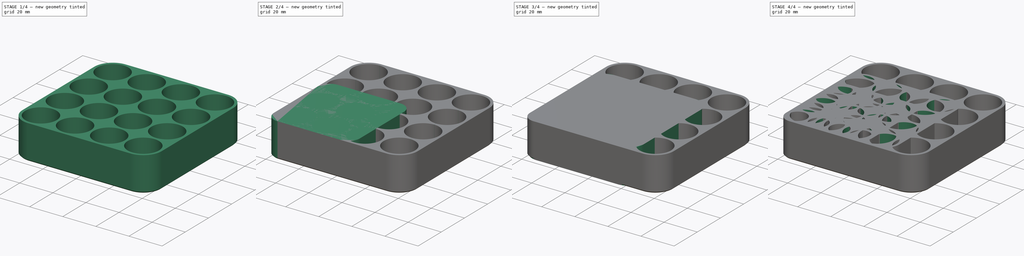
[diagram: build sequence overview — one tinted view per stage of 4, left to right]
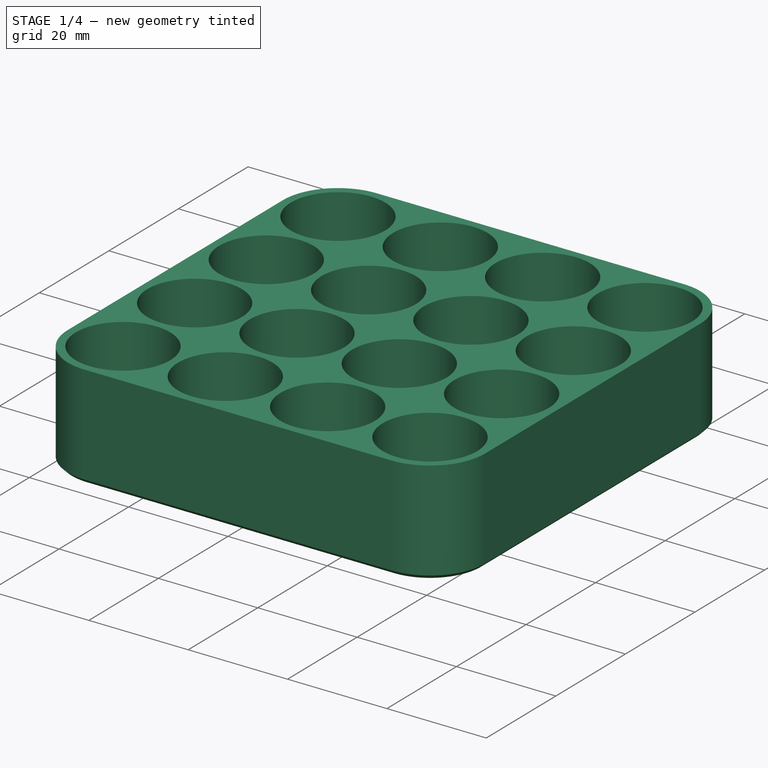
[diagram: stage 1 of 4 — iso view after this stage's code; geometry added in this stage tinted green]
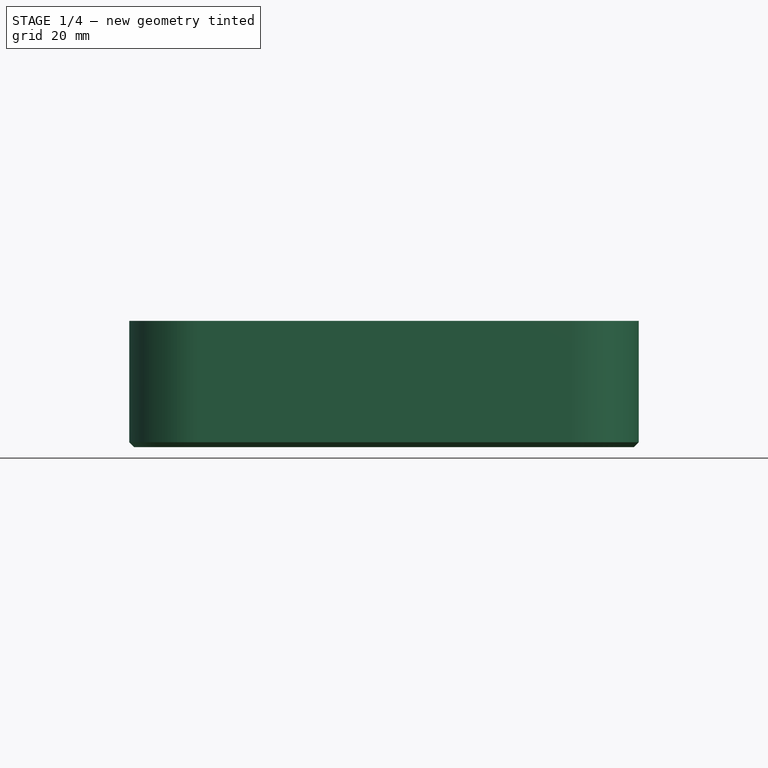
[diagram: stage 1 of 4 — front view after this stage's code; geometry added in this stage tinted green]
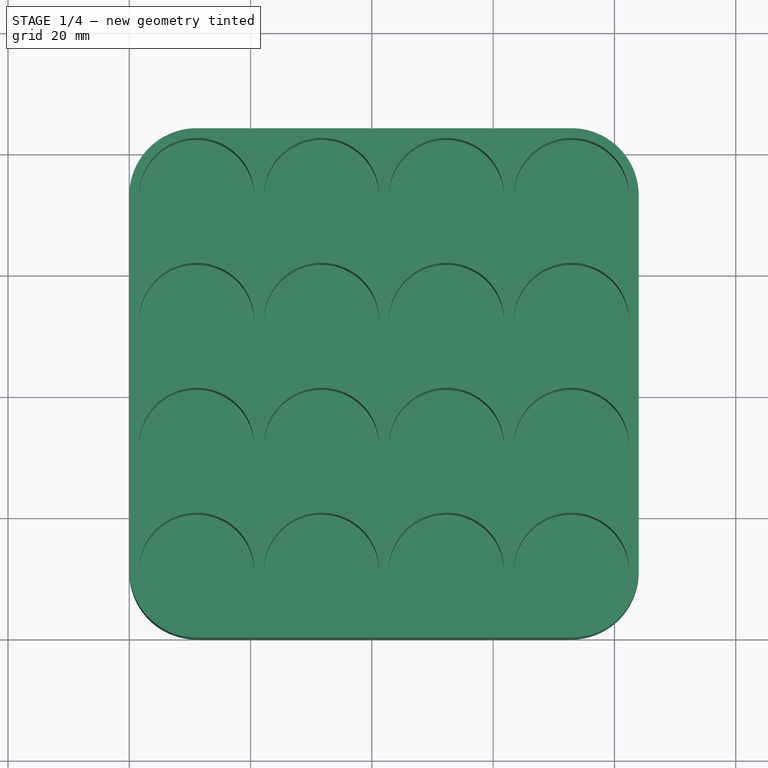
[diagram: stage 1 of 4 — top view after this stage's code; geometry added in this stage tinted green]
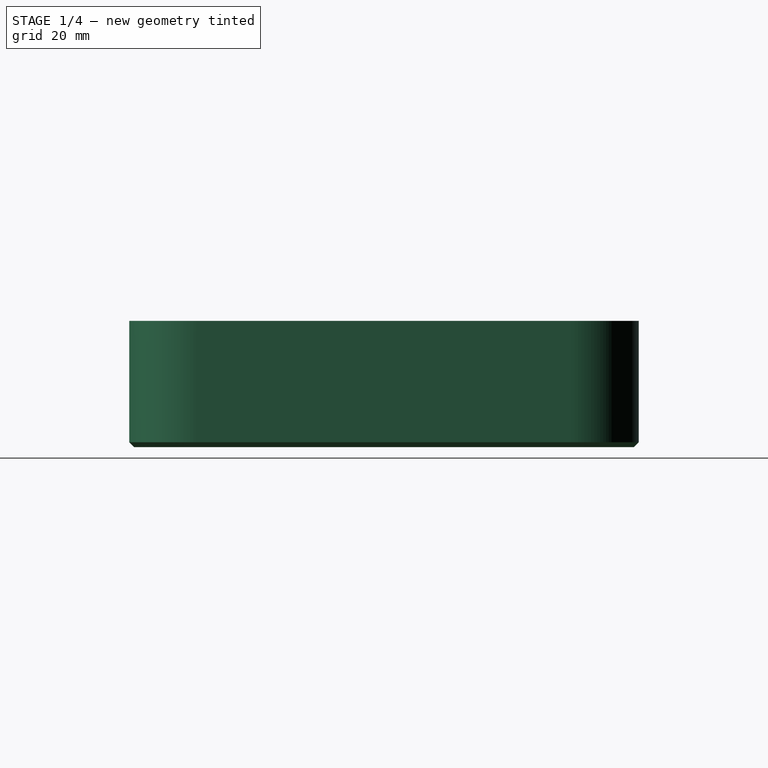
[diagram: stage 1 of 4 — right view after this stage's code; geometry added in this stage tinted green]
FCSTD DOCUMENT  (FreeCAD 1.0R39319 (Git))
Label: VaseModeBatteryHolder
License: All rights reserved
LicenseURL: https://en.wikipedia.org/wiki/All_rights_reserved
objects: Sketcher::SketchObject×12, PartDesign::Pocket×6, PartDesign::Pad×3, PartDesign::Chamfer×3, PartDesign::Body×3, Spreadsheet::Sheet×1
note: 63 computed .brp shape members not serialized (recipe doc carries the construction recipe); baked Part::Feature solids carry a one-line shape summary decoded from their .brp

FEATURE [PartDesign::Body] Body001  label="4x4_AAA"
  AllowCompound = false
  Group = -> [Sketch004,Sketch005,Pad001,Sketch006,Chamfer001,Pocket002,Sketch007,Pocket003]
  Origin = -> Origin001
  Tip = -> Pocket003
FEATURE [Sketcher::SketchObject] Sketch008  label="Template_18650"
  ArcFitTolerance = 1e-06
  AttachmentSupport = -> [XY_Plane002]
  FullyConstrained = true
  MakeInternals = false
  MapMode = 5
  expr: .Constraints.BatteryRadius = <<Spreadsheet>>.BatteryRadius_18650
  expr: Constraints[19] = .Constraints.BatteryRadius + <<Spreadsheet>>.WallThickness * 2
  expr: Constraints[6] = (.Constraints.BatteryRadius * 2 + 2 * <<Spreadsheet>>.WallThickness) * <<Spreadsheet>>.Count4 + +2 * <<Spreadsheet>>.WallThickness
  sketch-geometry (43):
    g0: LineSegment StartX=0 StartY=84 StartZ=0 EndX=0 EndY=0 EndZ=0
    g1: LineSegment StartX=0 StartY=0 StartZ=0 EndX=84 EndY=0 EndZ=0
    g2: LineSegment StartX=84 StartY=84 StartZ=0 EndX=0 EndY=84 EndZ=0
    g3: LineSegment StartX=84 StartY=0 StartZ=0 EndX=84 EndY=84 EndZ=0
    g4: LineSegment [constr] StartX=11.1 StartY=11.1 StartZ=0 EndX=11.1 EndY=0 EndZ=0
    g5: LineSegment [constr] StartX=0 StartY=11.1 StartZ=0 EndX=11.1 EndY=11.1 EndZ=0
    g6: LineSegment [constr] StartX=11.1 StartY=11.1 StartZ=0 EndX=22.2 EndY=11.1 EndZ=0
    g7: Circle CenterX=11.1 CenterY=11.1 CenterZ=0 NormalX=0 NormalY=0 NormalZ=1 AngleXU=0 Radius=9.5
    g8: Circle CenterX=52.3 CenterY=11.1 CenterZ=0 NormalX=0 NormalY=0 NormalZ=1 AngleXU=0 Radius=9.5
    g9: Circle CenterX=11.1 CenterY=52.3 CenterZ=0 NormalX=0 NormalY=0 NormalZ=1 AngleXU=0 Radius=9.5
    g10: Circle CenterX=31.7 CenterY=11.1 CenterZ=0 NormalX=0 NormalY=0 NormalZ=1 AngleXU=0 Radius=9.5
    g11: Circle CenterX=31.7 CenterY=52.3 CenterZ=0 NormalX=0 NormalY=0 NormalZ=1 AngleXU=0 Radius=9.5
    g12: Circle CenterX=52.3 CenterY=52.3 CenterZ=0 NormalX=0 NormalY=0 NormalZ=1 AngleXU=0 Radius=9.5
    g13: Circle CenterX=72.9 CenterY=52.3 CenterZ=0 NormalX=0 NormalY=0 NormalZ=1 AngleXU=0 Radius=9.5
    g14: Circle CenterX=72.9 CenterY=11.1 CenterZ=0 NormalX=0 NormalY=0 NormalZ=1 AngleXU=0 Radius=9.5
    g15: LineSegment [constr] StartX=31.7 StartY=11.1 StartZ=0 EndX=42.8 EndY=11.1 EndZ=0
    g16: LineSegment [constr] StartX=22.2 StartY=11.1 StartZ=0 EndX=31.7 EndY=11.1 EndZ=0
    g17: LineSegment [constr] StartX=42.8 StartY=11.1 StartZ=0 EndX=52.3 EndY=11.1 EndZ=0
    g18: LineSegment [constr] StartX=52.3 StartY=11.1 StartZ=0 EndX=63.4 EndY=11.1 EndZ=0
    g19: LineSegment [constr] StartX=63.4 StartY=11.1 StartZ=0 EndX=72.9 EndY=11.1 EndZ=0
    g20: LineSegment [constr] StartX=72.9 StartY=11.1 StartZ=0 EndX=84 EndY=11.1 EndZ=0
    g21: ArcOfCircle CenterX=11.1 CenterY=11.1 CenterZ=0 NormalX=0 NormalY=0 NormalZ=1 AngleXU=0 Radius=11.1 StartAngle=3.14159 EndAngle=4.71239
    g22: Circle CenterX=11.1 CenterY=72.9 CenterZ=0 NormalX=0 NormalY=0 NormalZ=1 AngleXU=0 Radius=9.5
    g23: Circle CenterX=31.7 CenterY=72.9 CenterZ=0 NormalX=0 NormalY=0 NormalZ=1 AngleXU=0 Radius=9.5
    g24: Circle CenterX=52.3 CenterY=72.9 CenterZ=0 NormalX=0 NormalY=0 NormalZ=1 AngleXU=0 Radius=9.5
    g25: Circle CenterX=72.9 CenterY=72.9 CenterZ=0 NormalX=0 NormalY=0 NormalZ=1 AngleXU=0 Radius=9.5
    g26: Circle CenterX=11.1 CenterY=31.7 CenterZ=0 NormalX=0 NormalY=0 NormalZ=1 AngleXU=0 Radius=9.5
    g27: Circle CenterX=31.7 CenterY=31.7 CenterZ=0 NormalX=0 NormalY=0 NormalZ=1 AngleXU=0 Radius=9.5
    g28: Circle CenterX=52.3 CenterY=31.7 CenterZ=0 NormalX=0 NormalY=0 NormalZ=1 AngleXU=0 Radius=9.5
    g29: Circle CenterX=72.9 CenterY=31.7 CenterZ=0 NormalX=0 NormalY=0 NormalZ=1 AngleXU=0 Radius=9.5
    g30: LineSegment [constr] StartX=11.1 StartY=11.1 StartZ=0 EndX=11.1 EndY=22.2 EndZ=0
    g31: LineSegment [constr] StartX=11.1 StartY=22.2 StartZ=0 EndX=11.1 EndY=31.7 EndZ=0
    g32: LineSegment [constr] StartX=11.1 StartY=31.7 StartZ=0 EndX=11.1 EndY=42.8 EndZ=0
    g33: LineSegment [constr] StartX=11.1 StartY=42.8 StartZ=0 EndX=11.1 EndY=52.3 EndZ=0
    g34: LineSegment [constr] StartX=11.1 StartY=52.3 StartZ=0 EndX=11.1 EndY=63.4 EndZ=0
    g35: LineSegment [constr] StartX=11.1 StartY=63.4 StartZ=0 EndX=11.1 EndY=72.9 EndZ=0
    g36: LineSegment [constr] StartX=11.1 StartY=72.9 StartZ=0 EndX=11.1 EndY=84 EndZ=0
    g37: LineSegment [constr] StartX=31.7 StartY=84 StartZ=0 EndX=31.7 EndY=0 EndZ=0
    g38: LineSegment [constr] StartX=52.3 StartY=84 StartZ=0 EndX=52.3 EndY=0 EndZ=0
    g39: LineSegment [constr] StartX=72.9 StartY=84 StartZ=0 EndX=72.9 EndY=0 EndZ=0
    g40: LineSegment [constr] StartX=0 StartY=31.7 StartZ=0 EndX=84 EndY=31.7 EndZ=0
    g41: LineSegment [constr] StartX=0 StartY=52.3 StartZ=0 EndX=84 EndY=52.3 EndZ=0
    g42: LineSegment [constr] StartX=0 StartY=72.9 StartZ=0 EndX=84 EndY=72.9 EndZ=0
  constraints (127):
    c: Coincident(g0,g1)
    c: Coincident(g3,g2)
    c: Coincident(g2,g0)
    c: Vertical(g0)
    c: Horizontal(g1)
    c: Horizontal(g2)
    c: DistanceX(g2,g2) = 84
    c: Vertical(g3)
    c: PointOnObject(g5,g0)
    c: Coincident(g0,g-1)
    c: Vertical(g4)
    c: Coincident(g5,g6)
    c: Horizontal(g5)
    c: Horizontal(g6)
    c: PointOnObject(g4,g1)
    c: Coincident(g3,g1)
    c: Coincident(g7,g4)
    c: Radius(g7) = 9.5  'BatteryRadius'
    c: Coincident(g4,g5)
    c: DistanceX(g0,g4) = 11.1
    c: Equal(g8,g7)
    c: Equal(g6,g5)
    c: PointOnObject(g6,g10)
    c: Equal(g10,g7)
    c: Coincident(g15,g10)
    c: PointOnObject(g15,g8)
    c: Horizontal(g15)
    c: Equal(g15,g6)
    c: Coincident(g16,g6)
    c: Coincident(g16,g10)
    c: Horizontal(g16)
    c: Coincident(g17,g15)
    c: Coincident(g17,g8)
    c: Horizontal(g17)
    c: Coincident(g18,g8)
    c: PointOnObject(g18,g14)
    c: Horizontal(g18)
    c: Equal(g15,g18)
    c: Equal(g14,g8)
    c: Horizontal(g19)
    c: Coincident(g14,g19)
    c: Coincident(g19,g18)
    c: Coincident(g20,g14)
    c: PointOnObject(g20,g3)
    c: Horizontal(g20)
    c: Coincident(g21,g4)
    c: Coincident(g21,g5)
    c: Coincident(g21,g4)
    c: Coincident(g30,g4)
    c: PointOnObject(g30,g26)
    c: Vertical(g30)
    c: Coincident(g31,g30)
    c: Coincident(g31,g26)
    c: Vertical(g31)
    c: Coincident(g32,g26)
    c: PointOnObject(g32,g9)
    c: Vertical(g32)
    c: Coincident(g33,g32)
    c: Coincident(g33,g9)
    c: Vertical(g33)
    c: Coincident(g34,g9)
    c: Vertical(g34)
    c: Coincident(g35,g34)
    c: Coincident(g35,g22)
    c: Vertical(g35)
    c: Coincident(g36,g22)
    c: PointOnObject(g36,g2)
    c: Vertical(g36)
    c: Equal(g4,g30)
    c: Equal(g14,g26)
    c: Equal(g26,g27)
    c: Equal(g27,g28)
    c: Equal(g28,g29)
    c: Equal(g29,g13)
    c: Equal(g13,g12)
    c: Equal(g12,g11)
    c: Equal(g11,g9)
    c: Equal(g9,g22)
    c: Equal(g22,g23)
    c: Equal(g23,g24)
    c: Equal(g24,g25)
    c: Equal(g30,g32)
    c: PointOnObject(g34,g22)
    c: Equal(g32,g34)
    c: PointOnObject(g37,g2)
    c: PointOnObject(g37,g1)
    c: Vertical(g37)
    c: PointOnObject(g38,g2)
    c: PointOnObject(g38,g1)
    c: Vertical(g38)
    c: PointOnObject(g39,g2)
    c: PointOnObject(g39,g1)
    c: Vertical(g39)
    c: PointOnObject(g40,g0)
    c: PointOnObject(g40,g3)
    c: Horizontal(g40)
    c: PointOnObject(g41,g0)
    c: PointOnObject(g41,g3)
    c: Horizontal(g41)
    c: PointOnObject(g42,g0)
    c: PointOnObject(g42,g3)
    c: Horizontal(g42)
    c: Equal(g2,g0)
    c: PointOnObject(g26,g40)
    c: PointOnObject(g27,g40)
    c: PointOnObject(g28,g40)
    c: PointOnObject(g29,g40)
    c: PointOnObject(g11,g41)
    c: PointOnObject(g12,g41)
    c: PointOnObject(g13,g41)
    c: PointOnObject(g33,g41)
    c: PointOnObject(g23,g42)
    c: PointOnObject(g24,g42)
    c: PointOnObject(g25,g42)
    c: PointOnObject(g22,g42)
    c: PointOnObject(g11,g37)
    c: PointOnObject(g23,g37)
    c: PointOnObject(g27,g37)
    c: PointOnObject(g10,g37)
    c: PointOnObject(g12,g38)
    c: PointOnObject(g24,g38)
    c: PointOnObject(g28,g38)
    c: PointOnObject(g8,g38)
    c: PointOnObject(g13,g39)
    c: PointOnObject(g25,g39)
    c: PointOnObject(g29,g39)
    c: PointOnObject(g14,g39)
FEATURE [Sketcher::SketchObject] Sketch009
  ArcFitTolerance = 1e-06
  AttachmentSupport = -> [XY_Plane002]
  ExternalGeometry = -> [Sketch008]
  FullyConstrained = true
  MakeInternals = false
  MapMode = 5
  sketch-geometry (10):
    g0: LineSegment StartX=0 StartY=72.9 StartZ=0 EndX=0 EndY=11.1 EndZ=0
    g1: LineSegment StartX=11.1 StartY=0 StartZ=0 EndX=72.9 EndY=0 EndZ=0
    g2: LineSegment StartX=84 StartY=11.1 StartZ=0 EndX=84 EndY=72.9 EndZ=0
    g3: LineSegment StartX=72.9 StartY=84 StartZ=0 EndX=11.1 EndY=84 EndZ=0
    g4: ArcOfCircle CenterX=11.1 CenterY=72.9 CenterZ=0 NormalX=0 NormalY=0 NormalZ=1 AngleXU=0 Radius=11.1 StartAngle=1.5708 EndAngle=3.14159
    g5: ArcOfCircle CenterX=11.1 CenterY=11.1 CenterZ=0 NormalX=0 NormalY=0 NormalZ=1 AngleXU=0 Radius=11.1 StartAngle=3.14159 EndAngle=4.71239
    g6: ArcOfCircle CenterX=72.9 CenterY=11.1 CenterZ=0 NormalX=0 NormalY=0 NormalZ=1 AngleXU=0 Radius=11.1 StartAngle=4.71239 EndAngle=6.28319
    g7: ArcOfCircle CenterX=72.9 CenterY=72.9 CenterZ=0 NormalX=0 NormalY=0 NormalZ=1 AngleXU=0 Radius=11.1 StartAngle=0 EndAngle=1.5708
    g8: GeomPoint [constr] X=0 Y=84 Z=0
    g9: GeomPoint [constr] X=84 Y=0 Z=0
  constraints (22):
    c: Tangent(g0,g4) = -1.5708
    c: Tangent(g0,g5) = -1.5708
    c: Tangent(g1,g5) = -1.5708
    c: Tangent(g1,g6) = -1.5708
    c: Tangent(g2,g6) = -1.5708
    c: Tangent(g2,g7) = -1.5708
    c: Tangent(g3,g7) = -1.5708
    c: Tangent(g3,g4) = -1.5708
    c: Vertical(g0)
    c: Vertical(g2)
    c: Horizontal(g1)
    c: Horizontal(g3)
    c: Equal(g4,g5)
    c: Equal(g5,g6)
    c: Equal(g6,g7)
    c: PointOnObject(g8,g0)
    c: PointOnObject(g8,g3)
    c: PointOnObject(g9,g1)
    c: PointOnObject(g9,g2)
    c: Coincident(g8,g-4)
    c: Coincident(g9,g-6)
    c: Equal(g5,g-7)
FEATURE [PartDesign::Pad] Pad002
  Direction = (0,0,1)
  Length = 20
  Length2 = 0.8
  Profile = -> Sketch009
  ReferenceAxis = -> Sketch009 [N_Axis]
  Refine = true
  Suppressed = false
  Type = 4
  expr: Length = <<Spreadsheet>>.Height_18650
  expr: Length2 = <<Spreadsheet>>.BaseThickness
FEATURE [PartDesign::Chamfer] Chamfer002
  Angle = 45
  Base = -> Pad002 [Edge6]
  BaseFeature = -> Pad002
  ChamferType = 0
  FlipDirection = false
  Refine = true
  Size = 0.8
  Size2 = 1
  SupportTransform = false
  Suppressed = false
  UseAllEdges = false
  expr: Size = <<Pad002>>.Length2
FEATURE [Sketcher::SketchObject] Sketch010
  ArcFitTolerance = 1e-06
  AttachmentSupport = -> [XY_Plane002]
  ExternalGeometry = -> [Sketch008]
  FullyConstrained = true
  MakeInternals = false
  MapMode = 5
  sketch-geometry (16):
    g0: Circle CenterX=11.1 CenterY=11.1 CenterZ=0 NormalX=0 NormalY=0 NormalZ=1 AngleXU=0 Radius=9.5
    g1: Circle CenterX=31.7 CenterY=11.1 CenterZ=0 NormalX=0 NormalY=0 NormalZ=1 AngleXU=0 Radius=9.5
    g2: Circle CenterX=52.3 CenterY=11.1 CenterZ=0 NormalX=0 NormalY=0 NormalZ=1 AngleXU=0 Radius=9.5
    g3: Circle CenterX=72.9 CenterY=11.1 CenterZ=0 NormalX=0 NormalY=0 NormalZ=1 AngleXU=0 Radius=9.5
    g4: Circle CenterX=11.1 CenterY=31.7 CenterZ=0 NormalX=0 NormalY=0 NormalZ=1 AngleXU=0 Radius=9.5
    g5: Circle CenterX=31.7 CenterY=31.7 CenterZ=0 NormalX=0 NormalY=0 NormalZ=1 AngleXU=0 Radius=9.5
    g6: Circle CenterX=52.3 CenterY=31.7 CenterZ=0 NormalX=0 NormalY=0 NormalZ=1 AngleXU=0 Radius=9.5
    g7: Circle CenterX=72.9 CenterY=31.7 CenterZ=0 NormalX=0 NormalY=0 NormalZ=1 AngleXU=0 Radius=9.5
    g8: Circle CenterX=11.1 CenterY=52.3 CenterZ=0 NormalX=0 NormalY=0 NormalZ=1 AngleXU=0 Radius=9.5
    g9: Circle CenterX=31.7 CenterY=52.3 CenterZ=0 NormalX=0 NormalY=0 NormalZ=1 AngleXU=0 Radius=9.5
    g10: Circle CenterX=52.3 CenterY=52.3 CenterZ=0 NormalX=0 NormalY=0 NormalZ=1 AngleXU=0 Radius=9.5
    g11: Circle CenterX=72.9 CenterY=52.3 CenterZ=0 NormalX=0 NormalY=0 NormalZ=1 AngleXU=0 Radius=9.5
    g12: Circle CenterX=72.9 CenterY=72.9 CenterZ=0 NormalX=0 NormalY=0 NormalZ=1 AngleXU=0 Radius=9.5
    g13: Circle CenterX=52.3 CenterY=72.9 CenterZ=0 NormalX=0 NormalY=0 NormalZ=1 AngleXU=0 Radius=9.5
    g14: Circle CenterX=31.7 CenterY=72.9 CenterZ=0 NormalX=0 NormalY=0 NormalZ=1 AngleXU=0 Radius=9.5
    g15: Circle CenterX=11.1 CenterY=72.9 CenterZ=0 NormalX=0 NormalY=0 NormalZ=1 AngleXU=0 Radius=9.5
  constraints (32):
    c: Coincident(g0,g-18)
    c: Coincident(g1,g-17)
    c: Coincident(g2,g-16)
    c: Coincident(g3,g-15)
    c: Coincident(g7,g-8)
    c: Coincident(g6,g-14)
    c: Coincident(g5,g-13)
    c: Coincident(g4,g-12)
    c: Coincident(g8,g-11)
    c: Coincident(g9,g-10)
    c: Coincident(g10,g-9)
    c: Coincident(g11,g-7)
    c: Coincident(g12,g-6)
    c: Coincident(g13,g-5)
    c: Coincident(g14,g-4)
    c: Coincident(g15,g-3)
    c: Equal(g0,g-18)
    c: Equal(g1,g-17)
    c: Equal(g2,g-16)
    c: Equal(g3,g-15)
    c: Equal(g7,g-8)
    c: Equal(g6,g-14)
    c: Equal(g5,g-13)
    c: Equal(g4,g-12)
    c: Equal(g8,g-11)
    c: Equal(g9,g-10)
    c: Equal(g10,g-9)
    c: Equal(g11,g-7)
    c: Equal(g12,g-6)
    c: Equal(g13,g-5)
    c: Equal(g14,g-4)
    c: Equal(g15,g-3)
FEATURE [PartDesign::Pocket] Pocket004
  BaseFeature = -> Chamfer002
  Direction = (0,0,-1)
  Length = 5
  Length2 = 5
  Profile = -> Sketch010
  ReferenceAxis = -> Sketch010 [N_Axis]
  Refine = true
  Reversed = true
  Suppressed = false
  Type = 1
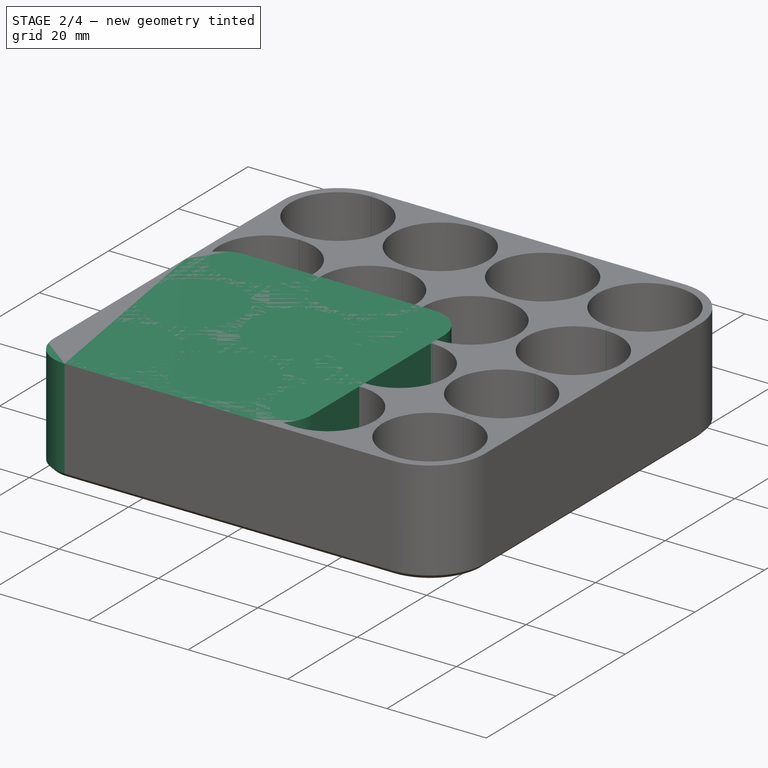
[diagram: stage 2 of 4 — iso view after this stage's code; geometry added in this stage tinted green]
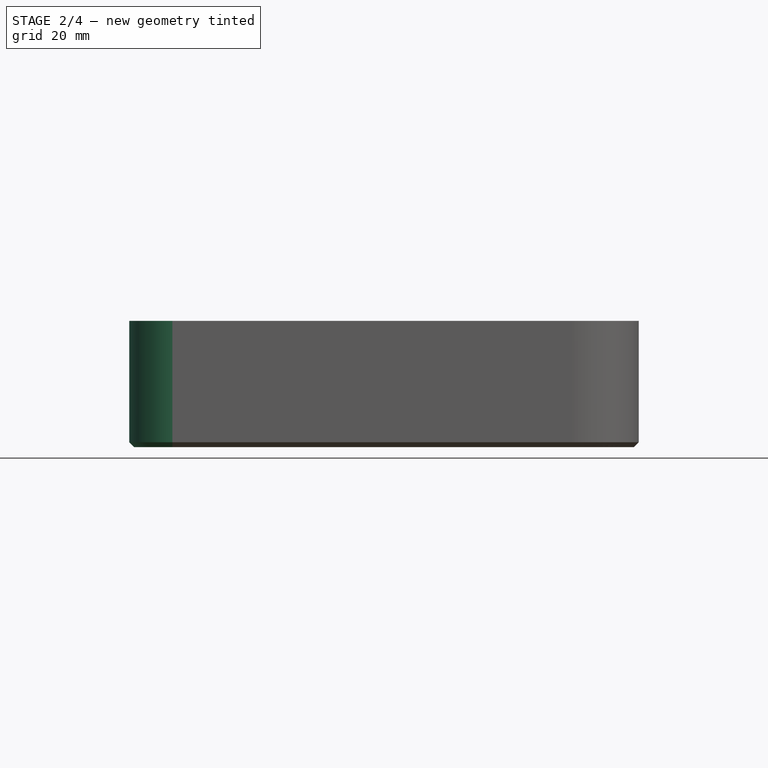
[diagram: stage 2 of 4 — front view after this stage's code; geometry added in this stage tinted green]
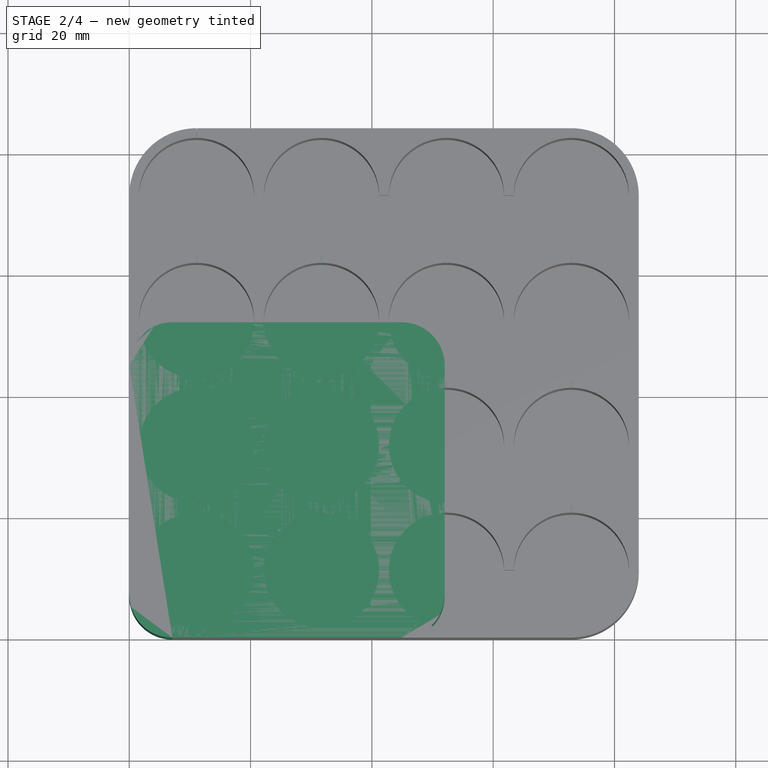
[diagram: stage 2 of 4 — top view after this stage's code; geometry added in this stage tinted green]
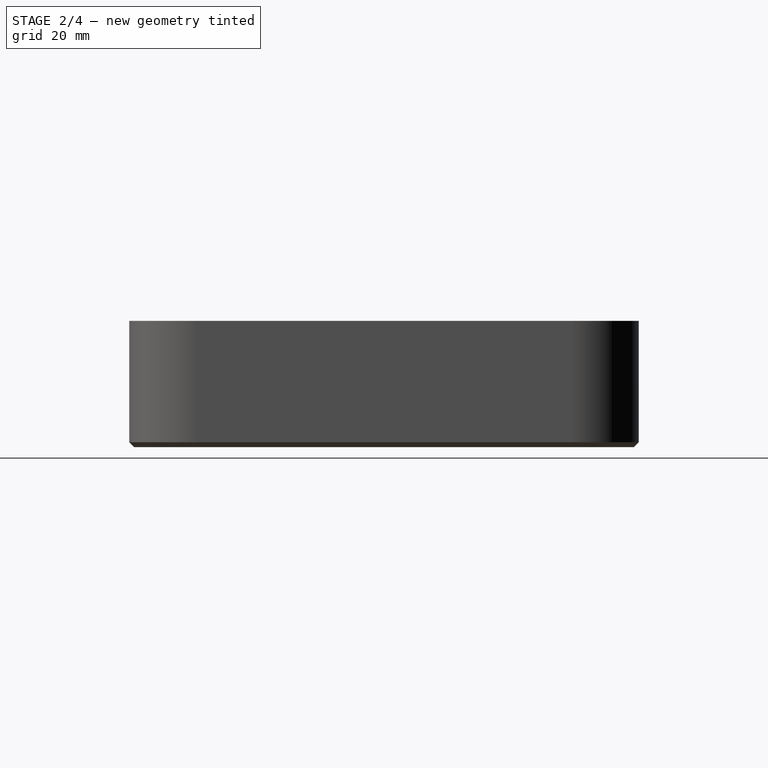
[diagram: stage 2 of 4 — right view after this stage's code; geometry added in this stage tinted green]
FEATURE [PartDesign::Body] Body  label="4x4_AA"
  AllowCompound = false
  Group = -> [Sketch,Sketch001,Pad,Sketch002,Chamfer,Pocket,Sketch003,Pocket001]
  Origin = -> Origin
  Tip = -> Pocket001
FEATURE [Sketcher::SketchObject] Sketch004  label="Template_AAA"
  ArcFitTolerance = 1e-06
  AttachmentSupport = -> [XY_Plane001]
  FullyConstrained = true
  MakeInternals = false
  MapMode = 5
  expr: Constraints[17] = <<Spreadsheet>>.BatteryRadius_AAA
  expr: Constraints[19] = <<Spreadsheet>>.BatteryRadius_AAA + <<Spreadsheet>>.WallThickness * 2
  expr: Constraints[6] = (<<Spreadsheet>>.BatteryRadius_AAA * 2 + 2 * <<Spreadsheet>>.WallThickness) * <<Spreadsheet>>.Count4 + +2 * <<Spreadsheet>>.WallThickness
  sketch-geometry (43):
    g0: LineSegment StartX=0 StartY=52 StartZ=0 EndX=0 EndY=0 EndZ=0
    g1: LineSegment StartX=0 StartY=0 StartZ=0 EndX=52 EndY=0 EndZ=0
    g2: LineSegment StartX=52 StartY=52 StartZ=0 EndX=0 EndY=52 EndZ=0
    g3: LineSegment StartX=52 StartY=0 StartZ=0 EndX=52 EndY=52 EndZ=0
    g4: LineSegment [constr] StartX=7.1 StartY=7.1 StartZ=0 EndX=7.1 EndY=0 EndZ=0
    g5: LineSegment [constr] StartX=0 StartY=7.1 StartZ=0 EndX=7.1 EndY=7.1 EndZ=0
    g6: LineSegment [constr] StartX=7.1 StartY=7.1 StartZ=0 EndX=14.2 EndY=7.1 EndZ=0
    g7: Circle CenterX=7.1 CenterY=7.1 CenterZ=0 NormalX=0 NormalY=0 NormalZ=1 AngleXU=0 Radius=5.5
    g8: Circle CenterX=32.3 CenterY=7.1 CenterZ=0 NormalX=0 NormalY=0 NormalZ=1 AngleXU=0 Radius=5.5
    g9: Circle CenterX=7.1 CenterY=32.3 CenterZ=0 NormalX=0 NormalY=0 NormalZ=1 AngleXU=0 Radius=5.5
    g10: Circle CenterX=19.7 CenterY=7.1 CenterZ=0 NormalX=0 NormalY=0 NormalZ=1 AngleXU=0 Radius=5.5
    g11: Circle CenterX=19.7 CenterY=32.3 CenterZ=0 NormalX=0 NormalY=0 NormalZ=1 AngleXU=0 Radius=5.5
    g12: Circle CenterX=32.3 CenterY=32.3 CenterZ=0 NormalX=0 NormalY=0 NormalZ=1 AngleXU=0 Radius=5.5
    g13: Circle CenterX=44.9 CenterY=32.3 CenterZ=0 NormalX=0 NormalY=0 NormalZ=1 AngleXU=0 Radius=5.5
    g14: Circle CenterX=44.9 CenterY=7.1 CenterZ=0 NormalX=0 NormalY=0 NormalZ=1 AngleXU=0 Radius=5.5
    g15: LineSegment [constr] StartX=19.7 StartY=7.1 StartZ=0 EndX=26.8 EndY=7.1 EndZ=0
    g16: LineSegment [constr] StartX=14.2 StartY=7.1 StartZ=0 EndX=19.7 EndY=7.1 EndZ=0
    g17: LineSegment [constr] StartX=26.8 StartY=7.1 StartZ=0 EndX=32.3 EndY=7.1 EndZ=0
    g18: LineSegment [constr] StartX=32.3 StartY=7.1 StartZ=0 EndX=39.4 EndY=7.1 EndZ=0
    g19: LineSegment [constr] StartX=39.4 StartY=7.1 StartZ=0 EndX=44.9 EndY=7.1 EndZ=0
    g20: LineSegment [constr] StartX=44.9 StartY=7.1 StartZ=0 EndX=52 EndY=7.1 EndZ=0
    g21: ArcOfCircle CenterX=7.1 CenterY=7.1 CenterZ=0 NormalX=0 NormalY=0 NormalZ=1 AngleXU=0 Radius=7.1 StartAngle=3.14159 EndAngle=4.71239
    g22: Circle CenterX=7.1 CenterY=44.9 CenterZ=0 NormalX=0 NormalY=0 NormalZ=1 AngleXU=0 Radius=5.5
    g23: Circle CenterX=19.7 CenterY=44.9 CenterZ=0 NormalX=0 NormalY=0 NormalZ=1 AngleXU=0 Radius=5.5
    g24: Circle CenterX=32.3 CenterY=44.9 CenterZ=0 NormalX=0 NormalY=0 NormalZ=1 AngleXU=0 Radius=5.5
    g25: Circle CenterX=44.9 CenterY=44.9 CenterZ=0 NormalX=0 NormalY=0 NormalZ=1 AngleXU=0 Radius=5.5
    g26: Circle CenterX=7.1 CenterY=19.7 CenterZ=0 NormalX=0 NormalY=0 NormalZ=1 AngleXU=0 Radius=5.5
    g27: Circle CenterX=19.7 CenterY=19.7 CenterZ=0 NormalX=0 NormalY=0 NormalZ=1 AngleXU=0 Radius=5.5
    g28: Circle CenterX=32.3 CenterY=19.7 CenterZ=0 NormalX=0 NormalY=0 NormalZ=1 AngleXU=0 Radius=5.5
    g29: Circle CenterX=44.9 CenterY=19.7 CenterZ=0 NormalX=0 NormalY=0 NormalZ=1 AngleXU=0 Radius=5.5
    g30: LineSegment [constr] StartX=7.1 StartY=7.1 StartZ=0 EndX=7.1 EndY=14.2 EndZ=0
    g31: LineSegment [constr] StartX=7.1 StartY=14.2 StartZ=0 EndX=7.1 EndY=19.7 EndZ=0
    g32: LineSegment [constr] StartX=7.1 StartY=19.7 StartZ=0 EndX=7.1 EndY=26.8 EndZ=0
    g33: LineSegment [constr] StartX=7.1 StartY=26.8 StartZ=0 EndX=7.1 EndY=32.3 EndZ=0
    g34: LineSegment [constr] StartX=7.1 StartY=32.3 StartZ=0 EndX=7.1 EndY=39.4 EndZ=0
    g35: LineSegment [constr] StartX=7.1 StartY=39.4 StartZ=0 EndX=7.1 EndY=44.9 EndZ=0
    g36: LineSegment [constr] StartX=7.1 StartY=44.9 StartZ=0 EndX=7.1 EndY=52 EndZ=0
    g37: LineSegment [constr] StartX=19.7 StartY=52 StartZ=0 EndX=19.7 EndY=0 EndZ=0
    g38: LineSegment [constr] StartX=32.3 StartY=52 StartZ=0 EndX=32.3 EndY=0 EndZ=0
    g39: LineSegment [constr] StartX=44.9 StartY=52 StartZ=0 EndX=44.9 EndY=0 EndZ=0
    g40: LineSegment [constr] StartX=0 StartY=19.7 StartZ=0 EndX=52 EndY=19.7 EndZ=0
    g41: LineSegment [constr] StartX=0 StartY=32.3 StartZ=0 EndX=52 EndY=32.3 EndZ=0
    g42: LineSegment [constr] StartX=0 StartY=44.9 StartZ=0 EndX=52 EndY=44.9 EndZ=0
  constraints (127):
    c: Coincident(g0,g1)
    c: Coincident(g3,g2)
    c: Coincident(g2,g0)
    c: Vertical(g0)
    c: Horizontal(g1)
    c: Horizontal(g2)
    c: DistanceX(g2,g2) = 52
    c: Vertical(g3)
    c: PointOnObject(g5,g0)
    c: Coincident(g0,g-1)
    c: Vertical(g4)
    c: Coincident(g5,g6)
    c: Horizontal(g5)
    c: Horizontal(g6)
    c: PointOnObject(g4,g1)
    c: Coincident(g3,g1)
    c: Coincident(g7,g4)
    c: Radius(g7) = 5.5
    c: Coincident(g4,g5)
    c: DistanceX(g0,g4) = 7.1
    c: Equal(g8,g7)
    c: Equal(g6,g5)
    c: PointOnObject(g6,g10)
    c: Equal(g10,g7)
    c: Coincident(g15,g10)
    c: PointOnObject(g15,g8)
    c: Horizontal(g15)
    c: Equal(g15,g6)
    c: Coincident(g16,g6)
    c: Coincident(g16,g10)
    c: Horizontal(g16)
    c: Coincident(g17,g15)
    c: Coincident(g17,g8)
    c: Horizontal(g17)
    c: Coincident(g18,g8)
    c: PointOnObject(g18,g14)
    c: Horizontal(g18)
    c: Equal(g15,g18)
    c: Equal(g14,g8)
    c: Horizontal(g19)
    c: Coincident(g14,g19)
    c: Coincident(g19,g18)
    c: Coincident(g20,g14)
    c: PointOnObject(g20,g3)
    c: Horizontal(g20)
    c: Coincident(g21,g4)
    c: Coincident(g21,g5)
    c: Coincident(g21,g4)
    c: Coincident(g30,g4)
    c: PointOnObject(g30,g26)
    c: Vertical(g30)
    c: Coincident(g31,g30)
    c: Coincident(g31,g26)
    c: Vertical(g31)
    c: Coincident(g32,g26)
    c: PointOnObject(g32,g9)
    c: Vertical(g32)
    c: Coincident(g33,g32)
    c: Coincident(g33,g9)
    c: Vertical(g33)
    c: Coincident(g34,g9)
    c: Vertical(g34)
    c: Coincident(g35,g34)
    c: Coincident(g35,g22)
    c: Vertical(g35)
    c: Coincident(g36,g22)
    c: PointOnObject(g36,g2)
    c: Vertical(g36)
    c: Equal(g4,g30)
    c: Equal(g14,g26)
    c: Equal(g26,g27)
    c: Equal(g27,g28)
    c: Equal(g28,g29)
    c: Equal(g29,g13)
    c: Equal(g13,g12)
    c: Equal(g12,g11)
    c: Equal(g11,g9)
    c: Equal(g9,g22)
    c: Equal(g22,g23)
    c: Equal(g23,g24)
    c: Equal(g24,g25)
    c: Equal(g30,g32)
    c: PointOnObject(g34,g22)
    c: Equal(g32,g34)
    c: PointOnObject(g37,g2)
    c: PointOnObject(g37,g1)
    c: Vertical(g37)
    c: PointOnObject(g38,g2)
    c: PointOnObject(g38,g1)
    c: Vertical(g38)
    c: PointOnObject(g39,g2)
    c: PointOnObject(g39,g1)
    c: Vertical(g39)
    c: PointOnObject(g40,g0)
    c: PointOnObject(g40,g3)
    c: Horizontal(g40)
    c: PointOnObject(g41,g0)
    c: PointOnObject(g41,g3)
    c: Horizontal(g41)
    c: PointOnObject(g42,g0)
    c: PointOnObject(g42,g3)
    c: Horizontal(g42)
    c: Equal(g2,g0)
    c: PointOnObject(g26,g40)
    c: PointOnObject(g27,g40)
    c: PointOnObject(g28,g40)
    c: PointOnObject(g29,g40)
    c: PointOnObject(g11,g41)
    c: PointOnObject(g12,g41)
    c: PointOnObject(g13,g41)
    c: PointOnObject(g33,g41)
    c: PointOnObject(g23,g42)
    c: PointOnObject(g24,g42)
    c: PointOnObject(g25,g42)
    c: PointOnObject(g22,g42)
    c: PointOnObject(g11,g37)
    c: PointOnObject(g23,g37)
    c: PointOnObject(g27,g37)
    c: PointOnObject(g10,g37)
    c: PointOnObject(g12,g38)
    c: PointOnObject(g24,g38)
    c: PointOnObject(g28,g38)
    c: PointOnObject(g8,g38)
    c: PointOnObject(g13,g39)
    c: PointOnObject(g25,g39)
    c: PointOnObject(g29,g39)
    c: PointOnObject(g14,g39)
FEATURE [Sketcher::SketchObject] Sketch005
  ArcFitTolerance = 1e-06
  AttachmentSupport = -> [XY_Plane001]
  ExternalGeometry = -> [Sketch004]
  FullyConstrained = true
  MakeInternals = false
  MapMode = 5
  sketch-geometry (10):
    g0: LineSegment StartX=0 StartY=44.9 StartZ=0 EndX=0 EndY=7.1 EndZ=0
    g1: LineSegment StartX=7.1 StartY=0 StartZ=0 EndX=44.9 EndY=0 EndZ=0
    g2: LineSegment StartX=52 StartY=7.1 StartZ=0 EndX=52 EndY=44.9 EndZ=0
    g3: LineSegment StartX=44.9 StartY=52 StartZ=0 EndX=7.1 EndY=52 EndZ=0
    g4: ArcOfCircle CenterX=7.1 CenterY=44.9 CenterZ=0 NormalX=0 NormalY=0 NormalZ=1 AngleXU=0 Radius=7.1 StartAngle=1.5708 EndAngle=3.14159
    g5: ArcOfCircle CenterX=7.1 CenterY=7.1 CenterZ=0 NormalX=0 NormalY=0 NormalZ=1 AngleXU=0 Radius=7.1 StartAngle=3.14159 EndAngle=4.71239
    g6: ArcOfCircle CenterX=44.9 CenterY=7.1 CenterZ=0 NormalX=0 NormalY=0 NormalZ=1 AngleXU=0 Radius=7.1 StartAngle=4.71239 EndAngle=6.28319
    g7: ArcOfCircle CenterX=44.9 CenterY=44.9 CenterZ=0 NormalX=0 NormalY=0 NormalZ=1 AngleXU=0 Radius=7.1 StartAngle=4e-16 EndAngle=1.5708
    g8: GeomPoint [constr] X=0 Y=52 Z=0
    g9: GeomPoint [constr] X=52 Y=0 Z=0
  constraints (22):
    c: Tangent(g0,g4) = -1.5708
    c: Tangent(g0,g5) = -1.5708
    c: Tangent(g1,g5) = -1.5708
    c: Tangent(g1,g6) = -1.5708
    c: Tangent(g2,g6) = -1.5708
    c: Tangent(g2,g7) = -1.5708
    c: Tangent(g3,g7) = -1.5708
    c: Tangent(g3,g4) = -1.5708
    c: Vertical(g0)
    c: Vertical(g2)
    c: Horizontal(g1)
    c: Horizontal(g3)
    c: Equal(g4,g5)
    c: Equal(g5,g6)
    c: Equal(g6,g7)
    c: PointOnObject(g8,g0)
    c: PointOnObject(g8,g3)
    c: PointOnObject(g9,g1)
    c: PointOnObject(g9,g2)
    c: Coincident(g8,g-4)
    c: Coincident(g9,g-6)
    c: Equal(g5,g-7)
FEATURE [PartDesign::Pad] Pad001
  Direction = (0,0,1)
  Length = 20
  Length2 = 0.8
  Profile = -> Sketch005
  ReferenceAxis = -> Sketch005 [N_Axis]
  Refine = true
  Suppressed = false
  Type = 4
  expr: Length = <<Spreadsheet>>.Height_AAA
  expr: Length2 = <<Spreadsheet>>.BaseThickness
FEATURE [PartDesign::Chamfer] Chamfer001
  Angle = 45
  Base = -> Pad001 [Edge6]
  BaseFeature = -> Pad001
  ChamferType = 0
  FlipDirection = false
  Refine = true
  Size = 0.8
  Size2 = 1
  SupportTransform = false
  Suppressed = false
  UseAllEdges = false
  expr: Size = <<Pad001>>.Length2
FEATURE [Sketcher::SketchObject] Sketch011
  ArcFitTolerance = 1e-06
  AttachmentSupport = -> [XY_Plane002]
  ExternalGeometry = -> [Sketch008]
  FullyConstrained = true
  MakeInternals = false
  MapMode = 5
  expr: Constraints[83] = <<Spreadsheet>>.Gap
  sketch-geometry (28):
    g0: LineSegment StartX=11.08 StartY=84 StartZ=0 EndX=11.08 EndY=20.6 EndZ=0
    g1: LineSegment StartX=11.08 StartY=20.6 StartZ=0 EndX=11.12 EndY=20.6 EndZ=0
    g2: LineSegment StartX=11.12 StartY=20.6 StartZ=0 EndX=11.12 EndY=84 EndZ=0
    g3: LineSegment StartX=11.12 StartY=84 StartZ=0 EndX=11.08 EndY=84 EndZ=0
    g4: LineSegment StartX=20.6 StartY=11.08 StartZ=0 EndX=20.6 EndY=11.12 EndZ=0
    g5: LineSegment StartX=20.6 StartY=11.12 StartZ=0 EndX=63.4 EndY=11.12 EndZ=0
    g6: LineSegment StartX=63.4 StartY=11.12 StartZ=0 EndX=63.4 EndY=11.08 EndZ=0
    g7: LineSegment StartX=63.4 StartY=11.08 StartZ=0 EndX=20.6 EndY=11.08 EndZ=0
    g8: LineSegment StartX=72.88 StartY=20.6 StartZ=0 EndX=72.92 EndY=20.6 EndZ=0
    g9: LineSegment StartX=72.92 StartY=20.6 StartZ=0 EndX=72.92 EndY=63.4 EndZ=0
    g10: LineSegment StartX=72.92 StartY=63.4 StartZ=0 EndX=72.88 EndY=63.4 EndZ=0
    g11: LineSegment StartX=72.88 StartY=63.4 StartZ=0 EndX=72.88 EndY=20.6 EndZ=0
    g12: LineSegment StartX=63.4 StartY=72.88 StartZ=0 EndX=41.2 EndY=72.88 EndZ=0
    g13: LineSegment StartX=41.2 StartY=72.88 StartZ=0 EndX=41.2 EndY=72.92 EndZ=0
    g14: LineSegment StartX=41.2 StartY=72.92 StartZ=0 EndX=63.4 EndY=72.92 EndZ=0
    g15: LineSegment StartX=63.4 StartY=72.92 StartZ=0 EndX=63.4 EndY=72.88 EndZ=0
    g16: LineSegment StartX=31.68 StartY=63.4 StartZ=0 EndX=31.68 EndY=41.2 EndZ=0
    g17: LineSegment StartX=31.68 StartY=41.2 StartZ=0 EndX=31.72 EndY=41.2 EndZ=0
    g18: LineSegment StartX=31.72 StartY=41.2 StartZ=0 EndX=31.72 EndY=63.4 EndZ=0
    g19: LineSegment StartX=31.72 StartY=63.4 StartZ=0 EndX=31.68 EndY=63.4 EndZ=0
    g20: LineSegment StartX=41.2 StartY=31.68 StartZ=0 EndX=41.2 EndY=31.72 EndZ=0
    g21: LineSegment StartX=41.2 StartY=31.72 StartZ=0 EndX=42.8 EndY=31.72 EndZ=0
    g22: LineSegment StartX=42.8 StartY=31.72 StartZ=0 EndX=42.8 EndY=31.68 EndZ=0
    g23: LineSegment StartX=42.8 StartY=31.68 StartZ=0 EndX=41.2 EndY=31.68 EndZ=0
    g24: LineSegment StartX=52.28 StartY=41.2 StartZ=0 EndX=52.32 EndY=41.2 EndZ=0
    g25: LineSegment StartX=52.32 StartY=41.2 StartZ=0 EndX=52.32 EndY=42.8 EndZ=0
    g26: LineSegment StartX=52.32 StartY=42.8 StartZ=0 EndX=52.28 EndY=42.8 EndZ=0
    g27: LineSegment StartX=52.28 StartY=42.8 StartZ=0 EndX=52.28 EndY=41.2 EndZ=0
  constraints (84):
    c: PointOnObject(g0,g-20)
    c: Vertical(g0)
    c: Coincident(g1,g0)
    c: Horizontal(g1)
    c: Coincident(g2,g1)
    c: PointOnObject(g2,g-20)
    c: Vertical(g2)
    c: Coincident(g3,g2)
    c: Coincident(g3,g0)
    c: PointOnObject(g0,g-18)
    c: PointOnObject(g1,g-18)
    c: Coincident(g4,g5)
    c: Coincident(g5,g6)
    c: Coincident(g6,g7)
    c: Coincident(g7,g4)
    c: Vertical(g4)
    c: Vertical(g6)
    c: Horizontal(g5)
    c: Horizontal(g7)
    c: PointOnObject(g4,g-18)
    c: PointOnObject(g5,g-15)
    c: PointOnObject(g4,g-18)
    c: Coincident(g8,g9)
    c: Coincident(g9,g10)
    c: Coincident(g10,g11)
    c: Coincident(g11,g8)
    c: Horizontal(g8)
    c: Horizontal(g10)
    c: Vertical(g9)
    c: Vertical(g11)
    c: PointOnObject(g8,g-15)
    c: PointOnObject(g9,g-6)
    c: PointOnObject(g8,g-15)
    c: Coincident(g12,g13)
    c: Coincident(g13,g14)
    c: Coincident(g14,g15)
    c: Coincident(g15,g12)
    c: Horizontal(g12)
    c: Horizontal(g14)
    c: Vertical(g13)
    c: Vertical(g15)
    c: PointOnObject(g12,g-6)
    c: PointOnObject(g13,g-4)
    c: PointOnObject(g14,g-6)
    c: Coincident(g16,g17)
    c: Coincident(g17,g18)
    c: Coincident(g18,g19)
    c: Coincident(g19,g16)
    c: Vertical(g16)
    c: Vertical(g18)
    c: Horizontal(g17)
    c: Horizontal(g19)
    c: PointOnObject(g16,g-4)
    c: PointOnObject(g17,g-12)
    c: PointOnObject(g18,g-4)
    c: Coincident(g20,g21)
    c: Coincident(g21,g22)
    c: Coincident(g22,g23)
    c: Coincident(g23,g20)
    c: Vertical(g20)
    c: Vertical(g22)
    c: Horizontal(g21)
    c: Horizontal(g23)
    c: PointOnObject(g20,g-12)
    c: PointOnObject(g21,g-13)
    c: PointOnObject(g20,g-12)
    c: Coincident(g24,g25)
    c: Coincident(g25,g26)
    c: Coincident(g26,g27)
    c: Coincident(g27,g24)
    c: Horizontal(g24)
    c: Horizontal(g26)
    c: Vertical(g25)
    c: Vertical(g27)
    c: PointOnObject(g24,g-13)
    c: PointOnObject(g25,g-8)
    c: PointOnObject(g24,g-13)
    c: Equal(g3,g4)
    c: Equal(g4,g8)
    c: Equal(g8,g15)
    c: Equal(g15,g19)
    c: Equal(g19,g20)
    c: Equal(g20,g24)
    c: DistanceX(g3,g3) = 0.04
FEATURE [PartDesign::Pocket] Pocket005
  BaseFeature = -> Pocket004
  Direction = (0,0,-1)
  Length = 5
  Length2 = 5
  Profile = -> Sketch011
  ReferenceAxis = -> Sketch011 [N_Axis]
  Refine = true
  Reversed = true
  Suppressed = false
  Type = 1
FEATURE [PartDesign::Body] Body002  label="4x4_18650"
  AllowCompound = false
  Group = -> [Sketch008,Sketch009,Pad002,Sketch010,Chamfer002,Pocket004,Sketch011,Pocket005]
  Origin = -> Origin002
  Tip = -> Pocket005
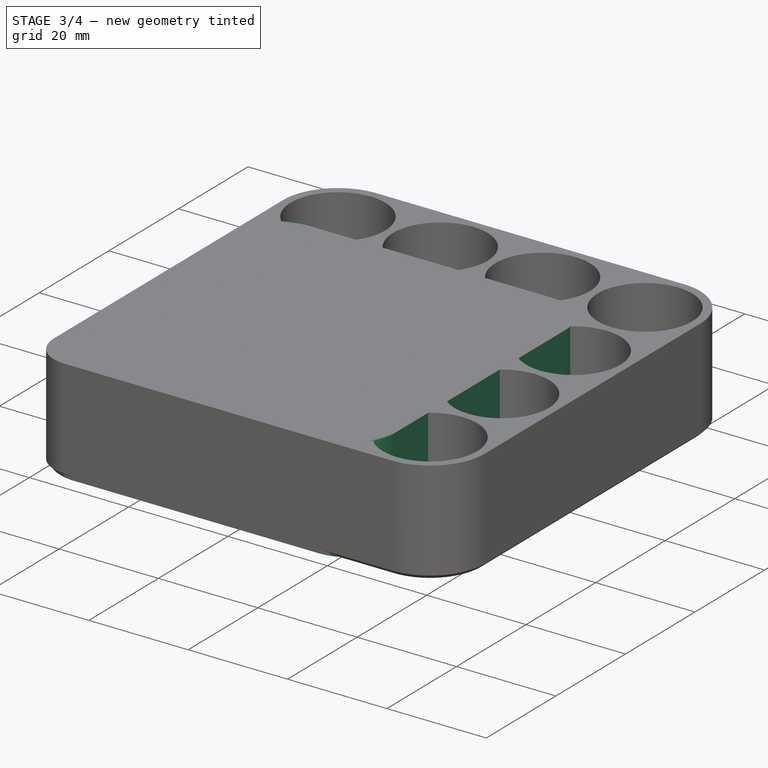
[diagram: stage 3 of 4 — iso view after this stage's code; geometry added in this stage tinted green]
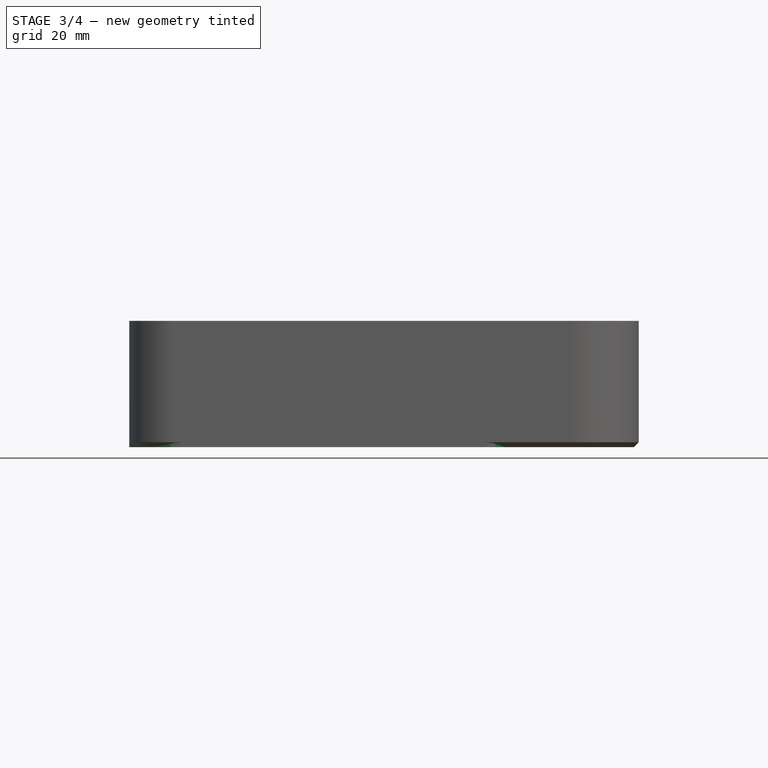
[diagram: stage 3 of 4 — front view after this stage's code; geometry added in this stage tinted green]
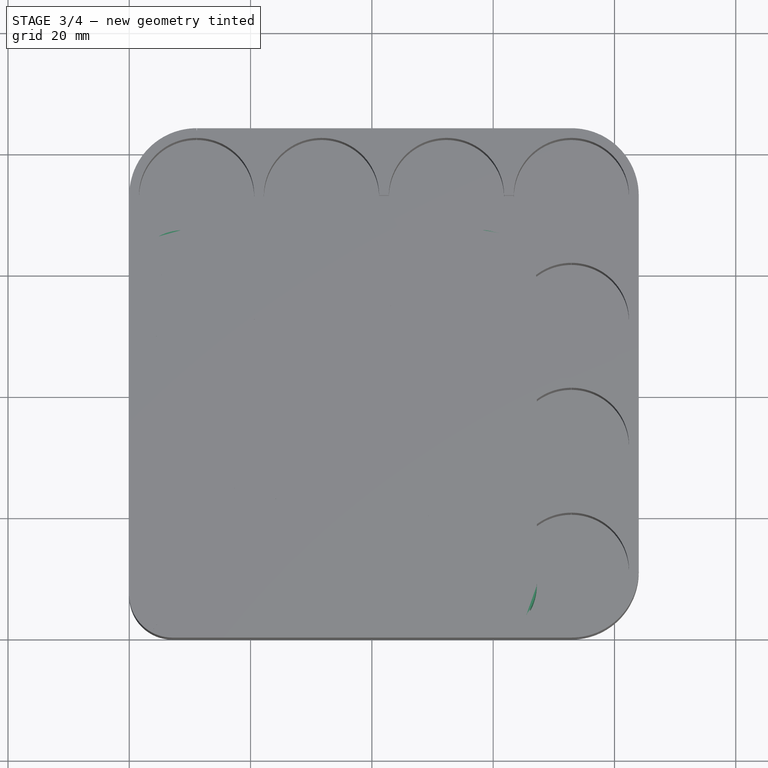
[diagram: stage 3 of 4 — top view after this stage's code; geometry added in this stage tinted green]
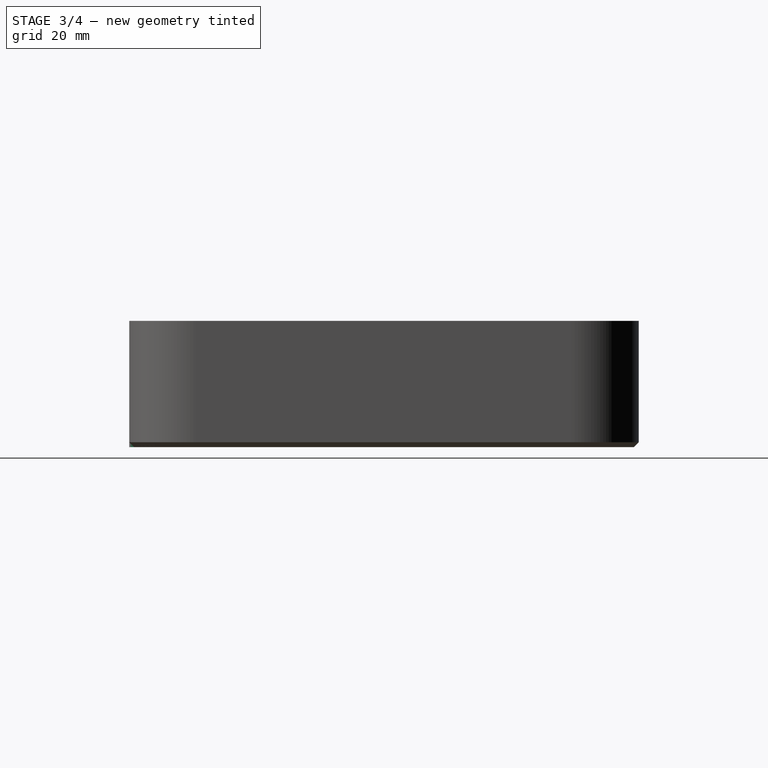
[diagram: stage 3 of 4 — right view after this stage's code; geometry added in this stage tinted green]
FEATURE [Spreadsheet::Sheet] Spreadsheet
  cells = C1='Common; D1='AAA; E1='AA; F1='18650; G1='Remark; B2='BatteryRadius; D2(BatteryRadius_AAA)==5.5 mm; E2(BatteryRadius_AA)==7.4 mm; F2(BatteryRadius_18650)==9.5 mm; B3='WallThickness; C3(WallThickness)==0.8 mm; B4='Count4; C4(Count4)=4; B5='Height; D5(Height_AAA)==20 mm; E5(Height_AA)==20 mm; F5(Height_18650)==20 mm; B6='BaseThickness; C6(BaseThickness)==0.8 mm; G6='0.24+4*0.16; B7='Gap; C7(Gap)==0.04 mm; G7='!!! Orca: Quality/Precision/Slice gap closing radius
FEATURE [Sketcher::SketchObject] Sketch  label="Template_AA"
  ArcFitTolerance = 1e-06
  AttachmentSupport = -> [XY_Plane]
  FullyConstrained = true
  MakeInternals = false
  MapMode = 5
  expr: Constraints[17] = <<Spreadsheet>>.BatteryRadius_AA
  expr: Constraints[19] = <<Spreadsheet>>.BatteryRadius_AA + <<Spreadsheet>>.WallThickness * 2
  expr: Constraints[6] = (<<Spreadsheet>>.BatteryRadius_AA * 2 + 2 * <<Spreadsheet>>.WallThickness) * <<Spreadsheet>>.Count4 + +2 * <<Spreadsheet>>.WallThickness
  sketch-geometry (43):
    g0: LineSegment StartX=0 StartY=67.2 StartZ=0 EndX=0 EndY=0 EndZ=0
    g1: LineSegment StartX=0 StartY=0 StartZ=0 EndX=67.2 EndY=0 EndZ=0
    g2: LineSegment StartX=67.2 StartY=67.2 StartZ=0 EndX=0 EndY=67.2 EndZ=0
    g3: LineSegment StartX=67.2 StartY=0 StartZ=0 EndX=67.2 EndY=67.2 EndZ=0
    g4: LineSegment [constr] StartX=9 StartY=9 StartZ=0 EndX=9 EndY=0 EndZ=0
    g5: LineSegment [constr] StartX=-2e-16 StartY=9 StartZ=0 EndX=9 EndY=9 EndZ=0
    g6: LineSegment [constr] StartX=9 StartY=9 StartZ=0 EndX=18 EndY=9 EndZ=0
    g7: Circle CenterX=9 CenterY=9 CenterZ=0 NormalX=0 NormalY=0 NormalZ=1 AngleXU=0 Radius=7.4
    g8: Circle CenterX=41.8 CenterY=9 CenterZ=0 NormalX=0 NormalY=0 NormalZ=1 AngleXU=0 Radius=7.4
    g9: Circle CenterX=9 CenterY=41.8 CenterZ=0 NormalX=0 NormalY=0 NormalZ=1 AngleXU=0 Radius=7.4
    g10: Circle CenterX=25.4 CenterY=9 CenterZ=0 NormalX=0 NormalY=0 NormalZ=1 AngleXU=0 Radius=7.4
    g11: Circle CenterX=25.4 CenterY=41.8 CenterZ=0 NormalX=0 NormalY=0 NormalZ=1 AngleXU=0 Radius=7.4
    g12: Circle CenterX=41.8 CenterY=41.8 CenterZ=0 NormalX=0 NormalY=0 NormalZ=1 AngleXU=0 Radius=7.4
    g13: Circle CenterX=58.2 CenterY=41.8 CenterZ=0 NormalX=0 NormalY=0 NormalZ=1 AngleXU=0 Radius=7.4
    g14: Circle CenterX=58.2 CenterY=9 CenterZ=0 NormalX=0 NormalY=0 NormalZ=1 AngleXU=0 Radius=7.4
    g15: LineSegment [constr] StartX=25.4 StartY=9 StartZ=0 EndX=34.4 EndY=9 EndZ=0
    g16: LineSegment [constr] StartX=18 StartY=9 StartZ=0 EndX=25.4 EndY=9 EndZ=0
    g17: LineSegment [constr] StartX=34.4 StartY=9 StartZ=0 EndX=41.8 EndY=9 EndZ=0
    g18: LineSegment [constr] StartX=41.8 StartY=9 StartZ=0 EndX=50.8 EndY=9 EndZ=0
    g19: LineSegment [constr] StartX=50.8 StartY=9 StartZ=0 EndX=58.2 EndY=9 EndZ=0
    g20: LineSegment [constr] StartX=58.2 StartY=9 StartZ=0 EndX=67.2 EndY=9 EndZ=0
    g21: ArcOfCircle CenterX=9 CenterY=9 CenterZ=0 NormalX=0 NormalY=0 NormalZ=1 AngleXU=0 Radius=9 StartAngle=3.14159 EndAngle=4.71239
    g22: Circle CenterX=9 CenterY=58.2 CenterZ=0 NormalX=0 NormalY=0 NormalZ=1 AngleXU=0 Radius=7.4
    g23: Circle CenterX=25.4 CenterY=58.2 CenterZ=0 NormalX=0 NormalY=0 NormalZ=1 AngleXU=0 Radius=7.4
    g24: Circle CenterX=41.8 CenterY=58.2 CenterZ=0 NormalX=0 NormalY=0 NormalZ=1 AngleXU=0 Radius=7.4
    g25: Circle CenterX=58.2 CenterY=58.2 CenterZ=0 NormalX=0 NormalY=0 NormalZ=1 AngleXU=0 Radius=7.4
    g26: Circle CenterX=9 CenterY=25.4 CenterZ=0 NormalX=0 NormalY=0 NormalZ=1 AngleXU=0 Radius=7.4
    g27: Circle CenterX=25.4 CenterY=25.4 CenterZ=0 NormalX=0 NormalY=0 NormalZ=1 AngleXU=0 Radius=7.4
    g28: Circle CenterX=41.8 CenterY=25.4 CenterZ=0 NormalX=0 NormalY=0 NormalZ=1 AngleXU=0 Radius=7.4
    g29: Circle CenterX=58.2 CenterY=25.4 CenterZ=0 NormalX=0 NormalY=0 NormalZ=1 AngleXU=0 Radius=7.4
    g30: LineSegment [constr] StartX=9 StartY=9 StartZ=0 EndX=9 EndY=18 EndZ=0
    g31: LineSegment [constr] StartX=9 StartY=18 StartZ=0 EndX=9 EndY=25.4 EndZ=0
    g32: LineSegment [constr] StartX=9 StartY=25.4 StartZ=0 EndX=9 EndY=34.4 EndZ=0
    g33: LineSegment [constr] StartX=9 StartY=34.4 StartZ=0 EndX=9 EndY=41.8 EndZ=0
    g34: LineSegment [constr] StartX=9 StartY=41.8 StartZ=0 EndX=9 EndY=50.8 EndZ=0
    g35: LineSegment [constr] StartX=9 StartY=50.8 StartZ=0 EndX=9 EndY=58.2 EndZ=0
    g36: LineSegment [constr] StartX=9 StartY=58.2 StartZ=0 EndX=9 EndY=67.2 EndZ=0
    g37: LineSegment [constr] StartX=25.4 StartY=67.2 StartZ=0 EndX=25.4 EndY=0 EndZ=0
    g38: LineSegment [constr] StartX=41.8 StartY=67.2 StartZ=0 EndX=41.8 EndY=0 EndZ=0
    g39: LineSegment [constr] StartX=58.2 StartY=67.2 StartZ=0 EndX=58.2 EndY=0 EndZ=0
    g40: LineSegment [constr] StartX=-1e-16 StartY=25.4 StartZ=0 EndX=67.2 EndY=25.4 EndZ=0
    g41: LineSegment [constr] StartX=-1e-16 StartY=41.8 StartZ=0 EndX=67.2 EndY=41.8 EndZ=0
    g42: LineSegment [constr] StartX=0 StartY=58.2 StartZ=0 EndX=67.2 EndY=58.2 EndZ=0
  constraints (127):
    c: Coincident(g0,g1)
    c: Coincident(g3,g2)
    c: Coincident(g2,g0)
    c: Vertical(g0)
    c: Horizontal(g1)
    c: Horizontal(g2)
    c: DistanceX(g2,g2) = 67.2
    c: Vertical(g3)
    c: PointOnObject(g5,g0)
    c: Coincident(g0,g-1)
    c: Vertical(g4)
    c: Coincident(g5,g6)
    c: Horizontal(g5)
    c: Horizontal(g6)
    c: PointOnObject(g4,g1)
    c: Coincident(g3,g1)
    c: Coincident(g7,g4)
    c: Radius(g7) = 7.4
    c: Coincident(g4,g5)
    c: DistanceX(g0,g4) = 9
    c: Equal(g8,g7)
    c: Equal(g6,g5)
    c: PointOnObject(g6,g10)
    c: Equal(g10,g7)
    c: Coincident(g15,g10)
    c: PointOnObject(g15,g8)
    c: Horizontal(g15)
    c: Equal(g15,g6)
    c: Coincident(g16,g6)
    c: Coincident(g16,g10)
    c: Horizontal(g16)
    c: Coincident(g17,g15)
    c: Coincident(g17,g8)
    c: Horizontal(g17)
    c: Coincident(g18,g8)
    c: PointOnObject(g18,g14)
    c: Horizontal(g18)
    c: Equal(g15,g18)
    c: Equal(g14,g8)
    c: Horizontal(g19)
    c: Coincident(g14,g19)
    c: Coincident(g19,g18)
    c: Coincident(g20,g14)
    c: PointOnObject(g20,g3)
    c: Horizontal(g20)
    c: Coincident(g21,g4)
    c: Coincident(g21,g5)
    c: Coincident(g21,g4)
    c: Coincident(g30,g4)
    c: PointOnObject(g30,g26)
    c: Vertical(g30)
    c: Coincident(g31,g30)
    c: Coincident(g31,g26)
    c: Vertical(g31)
    c: Coincident(g32,g26)
    c: PointOnObject(g32,g9)
    c: Vertical(g32)
    c: Coincident(g33,g32)
    c: Coincident(g33,g9)
    c: Vertical(g33)
    c: Coincident(g34,g9)
    c: Vertical(g34)
    c: Coincident(g35,g34)
    c: Coincident(g35,g22)
    c: Vertical(g35)
    c: Coincident(g36,g22)
    c: PointOnObject(g36,g2)
    c: Vertical(g36)
    c: Equal(g4,g30)
    c: Equal(g14,g26)
    c: Equal(g26,g27)
    c: Equal(g27,g28)
    c: Equal(g28,g29)
    c: Equal(g29,g13)
    c: Equal(g13,g12)
    c: Equal(g12,g11)
    c: Equal(g11,g9)
    c: Equal(g9,g22)
    c: Equal(g22,g23)
    c: Equal(g23,g24)
    c: Equal(g24,g25)
    c: Equal(g30,g32)
    c: PointOnObject(g34,g22)
    c: Equal(g32,g34)
    c: PointOnObject(g37,g2)
    c: PointOnObject(g37,g1)
    c: Vertical(g37)
    c: PointOnObject(g38,g2)
    c: PointOnObject(g38,g1)
    c: Vertical(g38)
    c: PointOnObject(g39,g2)
    c: PointOnObject(g39,g1)
    c: Vertical(g39)
    c: PointOnObject(g40,g0)
    c: PointOnObject(g40,g3)
    c: Horizontal(g40)
    c: PointOnObject(g41,g0)
    c: PointOnObject(g41,g3)
    c: Horizontal(g41)
    c: PointOnObject(g42,g0)
    c: PointOnObject(g42,g3)
    c: Horizontal(g42)
    c: Equal(g2,g0)
    c: PointOnObject(g26,g40)
    c: PointOnObject(g27,g40)
    c: PointOnObject(g28,g40)
    c: PointOnObject(g29,g40)
    c: PointOnObject(g11,g41)
    c: PointOnObject(g12,g41)
    c: PointOnObject(g13,g41)
    c: PointOnObject(g33,g41)
    c: PointOnObject(g23,g42)
    c: PointOnObject(g24,g42)
    c: PointOnObject(g25,g42)
    c: PointOnObject(g22,g42)
    c: PointOnObject(g11,g37)
    c: PointOnObject(g23,g37)
    c: PointOnObject(g27,g37)
    c: PointOnObject(g10,g37)
    c: PointOnObject(g12,g38)
    c: PointOnObject(g24,g38)
    c: PointOnObject(g28,g38)
    c: PointOnObject(g8,g38)
    c: PointOnObject(g13,g39)
    c: PointOnObject(g25,g39)
    c: PointOnObject(g29,g39)
    c: PointOnObject(g14,g39)
FEATURE [Sketcher::SketchObject] Sketch001
  ArcFitTolerance = 1e-06
  AttachmentSupport = -> [XY_Plane]
  ExternalGeometry = -> [Sketch]
  FullyConstrained = true
  MakeInternals = false
  MapMode = 5
  sketch-geometry (10):
    g0: LineSegment StartX=0 StartY=58.2 StartZ=0 EndX=0 EndY=9 EndZ=0
    g1: LineSegment StartX=9 StartY=0 StartZ=0 EndX=58.2 EndY=0 EndZ=0
    g2: LineSegment StartX=67.2 StartY=9 StartZ=0 EndX=67.2 EndY=58.2 EndZ=0
    g3: LineSegment StartX=58.2 StartY=67.2 StartZ=0 EndX=9 EndY=67.2 EndZ=0
    g4: ArcOfCircle CenterX=9 CenterY=58.2 CenterZ=0 NormalX=0 NormalY=0 NormalZ=1 AngleXU=0 Radius=9 StartAngle=1.5708 EndAngle=3.14159
    g5: ArcOfCircle CenterX=9 CenterY=9 CenterZ=0 NormalX=0 NormalY=0 NormalZ=1 AngleXU=0 Radius=9 StartAngle=3.14159 EndAngle=4.71239
    g6: ArcOfCircle CenterX=58.2 CenterY=9 CenterZ=0 NormalX=0 NormalY=0 NormalZ=1 AngleXU=0 Radius=9 StartAngle=4.71239 EndAngle=6.28319
    g7: ArcOfCircle CenterX=58.2 CenterY=58.2 CenterZ=0 NormalX=0 NormalY=0 NormalZ=1 AngleXU=0 Radius=9 StartAngle=0 EndAngle=1.5708
    g8: GeomPoint [constr] X=0 Y=67.2 Z=0
    g9: GeomPoint [constr] X=67.2 Y=0 Z=0
  constraints (22):
    c: Tangent(g0,g4) = -1.5708
    c: Tangent(g0,g5) = -1.5708
    c: Tangent(g1,g5) = -1.5708
    c: Tangent(g1,g6) = -1.5708
    c: Tangent(g2,g6) = -1.5708
    c: Tangent(g2,g7) = -1.5708
    c: Tangent(g3,g7) = -1.5708
    c: Tangent(g3,g4) = -1.5708
    c: Vertical(g0)
    c: Vertical(g2)
    c: Horizontal(g1)
    c: Horizontal(g3)
    c: Equal(g4,g5)
    c: Equal(g5,g6)
    c: Equal(g6,g7)
    c: PointOnObject(g8,g0)
    c: PointOnObject(g8,g3)
    c: PointOnObject(g9,g1)
    c: PointOnObject(g9,g2)
    c: Coincident(g8,g-4)
    c: Coincident(g9,g-6)
    c: Equal(g5,g-7)
FEATURE [PartDesign::Pad] Pad
  Direction = (0,0,1)
  Length = 20
  Length2 = 0.8
  Profile = -> Sketch001
  ReferenceAxis = -> Sketch001 [N_Axis]
  Refine = true
  Suppressed = false
  Type = 4
  expr: Length = <<Spreadsheet>>.Height_AA
  expr: Length2 = <<Spreadsheet>>.BaseThickness
FEATURE [Sketcher::SketchObject] Sketch006
  ArcFitTolerance = 1e-06
  AttachmentSupport = -> [XY_Plane001]
  ExternalGeometry = -> [Sketch004]
  FullyConstrained = true
  MakeInternals = false
  MapMode = 5
  sketch-geometry (16):
    g0: Circle CenterX=7.1 CenterY=7.1 CenterZ=0 NormalX=0 NormalY=0 NormalZ=1 AngleXU=0 Radius=5.5
    g1: Circle CenterX=19.7 CenterY=7.1 CenterZ=0 NormalX=0 NormalY=0 NormalZ=1 AngleXU=0 Radius=5.5
    g2: Circle CenterX=32.3 CenterY=7.1 CenterZ=0 NormalX=0 NormalY=0 NormalZ=1 AngleXU=0 Radius=5.5
    g3: Circle CenterX=44.9 CenterY=7.1 CenterZ=0 NormalX=0 NormalY=0 NormalZ=1 AngleXU=0 Radius=5.5
    g4: Circle CenterX=7.1 CenterY=19.7 CenterZ=0 NormalX=0 NormalY=0 NormalZ=1 AngleXU=0 Radius=5.5
    g5: Circle CenterX=19.7 CenterY=19.7 CenterZ=0 NormalX=0 NormalY=0 NormalZ=1 AngleXU=0 Radius=5.5
    g6: Circle CenterX=32.3 CenterY=19.7 CenterZ=0 NormalX=0 NormalY=0 NormalZ=1 AngleXU=0 Radius=5.5
    g7: Circle CenterX=44.9 CenterY=19.7 CenterZ=0 NormalX=0 NormalY=0 NormalZ=1 AngleXU=0 Radius=5.5
    g8: Circle CenterX=7.1 CenterY=32.3 CenterZ=0 NormalX=0 NormalY=0 NormalZ=1 AngleXU=0 Radius=5.5
    g9: Circle CenterX=19.7 CenterY=32.3 CenterZ=0 NormalX=0 NormalY=0 NormalZ=1 AngleXU=0 Radius=5.5
    g10: Circle CenterX=32.3 CenterY=32.3 CenterZ=0 NormalX=0 NormalY=0 NormalZ=1 AngleXU=0 Radius=5.5
    g11: Circle CenterX=44.9 CenterY=32.3 CenterZ=0 NormalX=0 NormalY=0 NormalZ=1 AngleXU=0 Radius=5.5
    g12: Circle CenterX=44.9 CenterY=44.9 CenterZ=0 NormalX=0 NormalY=0 NormalZ=1 AngleXU=0 Radius=5.5
    g13: Circle CenterX=32.3 CenterY=44.9 CenterZ=0 NormalX=0 NormalY=0 NormalZ=1 AngleXU=0 Radius=5.5
    g14: Circle CenterX=19.7 CenterY=44.9 CenterZ=0 NormalX=0 NormalY=0 NormalZ=1 AngleXU=0 Radius=5.5
    g15: Circle CenterX=7.1 CenterY=44.9 CenterZ=0 NormalX=0 NormalY=0 NormalZ=1 AngleXU=0 Radius=5.5
  constraints (32):
    c: Coincident(g0,g-18)
    c: Coincident(g1,g-17)
    c: Coincident(g2,g-16)
    c: Coincident(g3,g-15)
    c: Coincident(g7,g-8)
    c: Coincident(g6,g-14)
    c: Coincident(g5,g-13)
    c: Coincident(g4,g-12)
    c: Coincident(g8,g-11)
    c: Coincident(g9,g-10)
    c: Coincident(g10,g-9)
    c: Coincident(g11,g-7)
    c: Coincident(g12,g-6)
    c: Coincident(g13,g-5)
    c: Coincident(g14,g-4)
    c: Coincident(g15,g-3)
    c: Equal(g0,g-18)
    c: Equal(g1,g-17)
    c: Equal(g2,g-16)
    c: Equal(g3,g-15)
    c: Equal(g7,g-8)
    c: Equal(g6,g-14)
    c: Equal(g5,g-13)
    c: Equal(g4,g-12)
    c: Equal(g8,g-11)
    c: Equal(g9,g-10)
    c: Equal(g10,g-9)
    c: Equal(g11,g-7)
    c: Equal(g12,g-6)
    c: Equal(g13,g-5)
    c: Equal(g14,g-4)
    c: Equal(g15,g-3)
FEATURE [PartDesign::Pocket] Pocket002
  BaseFeature = -> Chamfer001
  Direction = (0,0,-1)
  Length = 5
  Length2 = 5
  Profile = -> Sketch006
  ReferenceAxis = -> Sketch006 [N_Axis]
  Refine = true
  Reversed = true
  Suppressed = false
  Type = 1
FEATURE [Sketcher::SketchObject] Sketch007
  ArcFitTolerance = 1e-06
  AttachmentSupport = -> [XY_Plane001]
  ExternalGeometry = -> [Sketch004]
  FullyConstrained = true
  MakeInternals = false
  MapMode = 5
  expr: Constraints[83] = <<Spreadsheet>>.Gap
  sketch-geometry (28):
    g0: LineSegment StartX=7.08 StartY=52 StartZ=0 EndX=7.08 EndY=12.6 EndZ=0
    g1: LineSegment StartX=7.08 StartY=12.6 StartZ=0 EndX=7.12 EndY=12.6 EndZ=0
    g2: LineSegment StartX=7.12 StartY=12.6 StartZ=0 EndX=7.12 EndY=52 EndZ=0
    g3: LineSegment StartX=7.12 StartY=52 StartZ=0 EndX=7.08 EndY=52 EndZ=0
    g4: LineSegment StartX=12.6 StartY=7.08 StartZ=0 EndX=12.6 EndY=7.12 EndZ=0
    g5: LineSegment StartX=12.6 StartY=7.12 StartZ=0 EndX=50.4 EndY=7.12 EndZ=0
    g6: LineSegment StartX=50.4 StartY=7.12 StartZ=0 EndX=50.4 EndY=7.08 EndZ=0
    g7: LineSegment StartX=50.4 StartY=7.08 StartZ=0 EndX=12.6 EndY=7.08 EndZ=0
    g8: LineSegment StartX=44.92 StartY=12.6 StartZ=0 EndX=44.88 EndY=12.6 EndZ=0
    g9: LineSegment StartX=44.88 StartY=12.6 StartZ=0 EndX=44.88 EndY=50.4 EndZ=0
    g10: LineSegment StartX=44.88 StartY=50.4 StartZ=0 EndX=44.92 EndY=50.4 EndZ=0
    g11: LineSegment StartX=44.92 StartY=50.4 StartZ=0 EndX=44.92 EndY=12.6 EndZ=0
    g12: LineSegment StartX=50.4 StartY=44.92 StartZ=0 EndX=25.2 EndY=44.92 EndZ=0
    g13: LineSegment StartX=25.2 StartY=44.92 StartZ=0 EndX=25.2 EndY=44.88 EndZ=0
    g14: LineSegment StartX=25.2 StartY=44.88 StartZ=0 EndX=50.4 EndY=44.88 EndZ=0
    g15: LineSegment StartX=50.4 StartY=44.88 StartZ=0 EndX=50.4 EndY=44.92 EndZ=0
    g16: LineSegment StartX=19.72 StartY=50.4 StartZ=0 EndX=19.72 EndY=25.2 EndZ=0
    g17: LineSegment StartX=19.72 StartY=25.2 StartZ=0 EndX=19.68 EndY=25.2 EndZ=0
    g18: LineSegment StartX=19.68 StartY=25.2 StartZ=0 EndX=19.68 EndY=50.4 EndZ=0
    g19: LineSegment StartX=19.68 StartY=50.4 StartZ=0 EndX=19.72 EndY=50.4 EndZ=0
    g20: LineSegment StartX=25.2 StartY=19.68 StartZ=0 EndX=25.2 EndY=19.72 EndZ=0
    g21: LineSegment StartX=25.2 StartY=19.72 StartZ=0 EndX=37.8 EndY=19.72 EndZ=0
    g22: LineSegment StartX=37.8 StartY=19.72 StartZ=0 EndX=37.8 EndY=19.68 EndZ=0
    g23: LineSegment StartX=37.8 StartY=19.68 StartZ=0 EndX=25.2 EndY=19.68 EndZ=0
    g24: LineSegment StartX=32.32 StartY=25.2 StartZ=0 EndX=32.28 EndY=25.2 EndZ=0
    g25: LineSegment StartX=32.28 StartY=25.2 StartZ=0 EndX=32.28 EndY=37.8 EndZ=0
    g26: LineSegment StartX=32.28 StartY=37.8 StartZ=0 EndX=32.32 EndY=37.8 EndZ=0
    g27: LineSegment StartX=32.32 StartY=37.8 StartZ=0 EndX=32.32 EndY=25.2 EndZ=0
  constraints (84):
    c: PointOnObject(g0,g-20)
    c: Vertical(g0)
    c: Coincident(g1,g0)
    c: Horizontal(g1)
    c: Coincident(g2,g1)
    c: PointOnObject(g2,g-20)
    c: Vertical(g2)
    c: Coincident(g3,g2)
    c: Coincident(g3,g0)
    c: PointOnObject(g0,g-18)
    c: PointOnObject(g1,g-18)
    c: Coincident(g4,g5)
    c: Coincident(g5,g6)
    c: Coincident(g6,g7)
    c: Coincident(g7,g4)
    c: Vertical(g4)
    c: Vertical(g6)
    c: Horizontal(g5)
    c: Horizontal(g7)
    c: PointOnObject(g4,g-18)
    c: PointOnObject(g5,g-15)
    c: PointOnObject(g4,g-18)
    c: Coincident(g8,g9)
    c: Coincident(g9,g10)
    c: Coincident(g10,g11)
    c: Coincident(g11,g8)
    c: Horizontal(g8)
    c: Horizontal(g10)
    c: Vertical(g9)
    c: Vertical(g11)
    c: PointOnObject(g8,g-15)
    c: PointOnObject(g9,g-6)
    c: PointOnObject(g8,g-15)
    c: Coincident(g12,g13)
    c: Coincident(g13,g14)
    c: Coincident(g14,g15)
    c: Coincident(g15,g12)
    c: Horizontal(g12)
    c: Horizontal(g14)
    c: Vertical(g13)
    c: Vertical(g15)
    c: PointOnObject(g12,g-6)
    c: PointOnObject(g13,g-4)
    c: PointOnObject(g14,g-6)
    c: Coincident(g16,g17)
    c: Coincident(g17,g18)
    c: Coincident(g18,g19)
    c: Coincident(g19,g16)
    c: Vertical(g16)
    c: Vertical(g18)
    c: Horizontal(g17)
    c: Horizontal(g19)
    c: PointOnObject(g16,g-4)
    c: PointOnObject(g17,g-12)
    c: PointOnObject(g18,g-4)
    c: Coincident(g20,g21)
    c: Coincident(g21,g22)
    c: Coincident(g22,g23)
    c: Coincident(g23,g20)
    c: Vertical(g20)
    c: Vertical(g22)
    c: Horizontal(g21)
    c: Horizontal(g23)
    c: PointOnObject(g20,g-12)
    c: PointOnObject(g21,g-13)
    c: PointOnObject(g20,g-12)
    c: Coincident(g24,g25)
    c: Coincident(g25,g26)
    c: Coincident(g26,g27)
    c: Coincident(g27,g24)
    c: Horizontal(g24)
    c: Horizontal(g26)
    c: Vertical(g25)
    c: Vertical(g27)
    c: PointOnObject(g24,g-13)
    c: PointOnObject(g25,g-8)
    c: PointOnObject(g24,g-13)
    c: Equal(g3,g4)
    c: Equal(g4,g8)
    c: Equal(g8,g15)
    c: Equal(g15,g19)
    c: Equal(g19,g20)
    c: Equal(g20,g24)
    c: DistanceX(g3,g3) = 0.04
FEATURE [PartDesign::Pocket] Pocket003
  BaseFeature = -> Pocket002
  Direction = (0,0,-1)
  Length = 5
  Length2 = 5
  Profile = -> Sketch007
  ReferenceAxis = -> Sketch007 [N_Axis]
  Refine = true
  Reversed = true
  Suppressed = false
  Type = 1
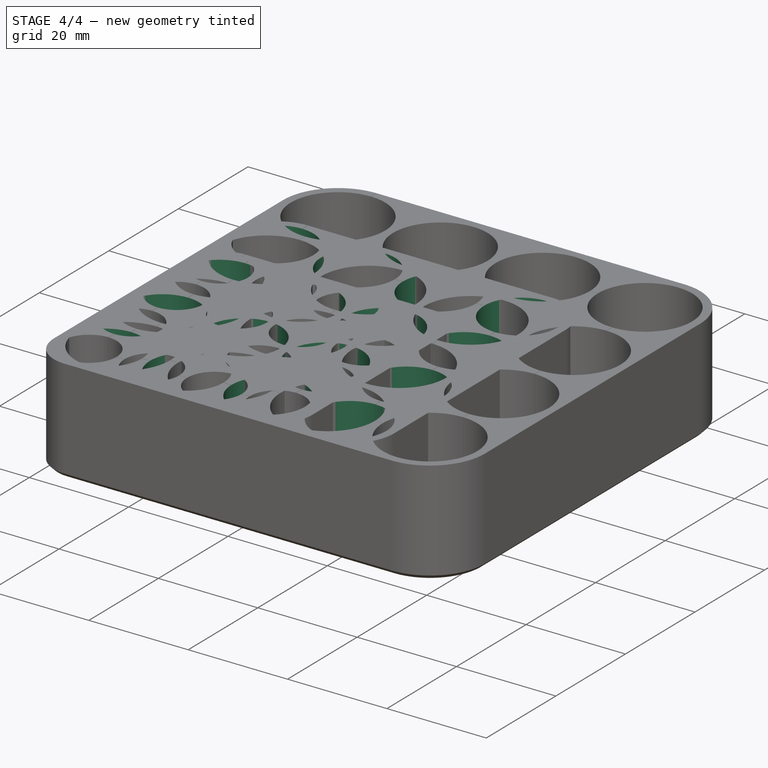
[diagram: stage 4 of 4 — iso view after this stage's code; geometry added in this stage tinted green]
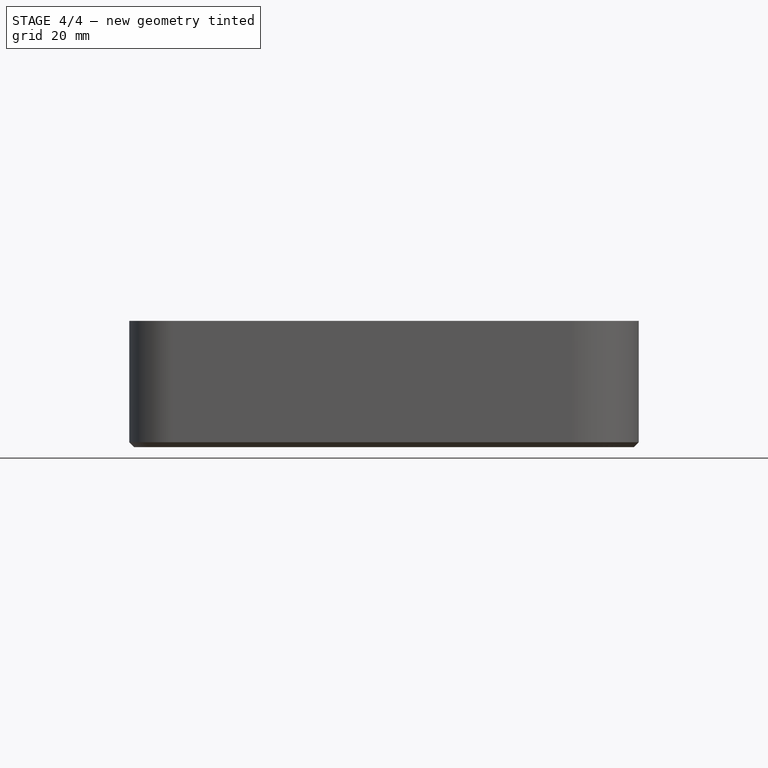
[diagram: stage 4 of 4 — front view after this stage's code; geometry added in this stage tinted green]
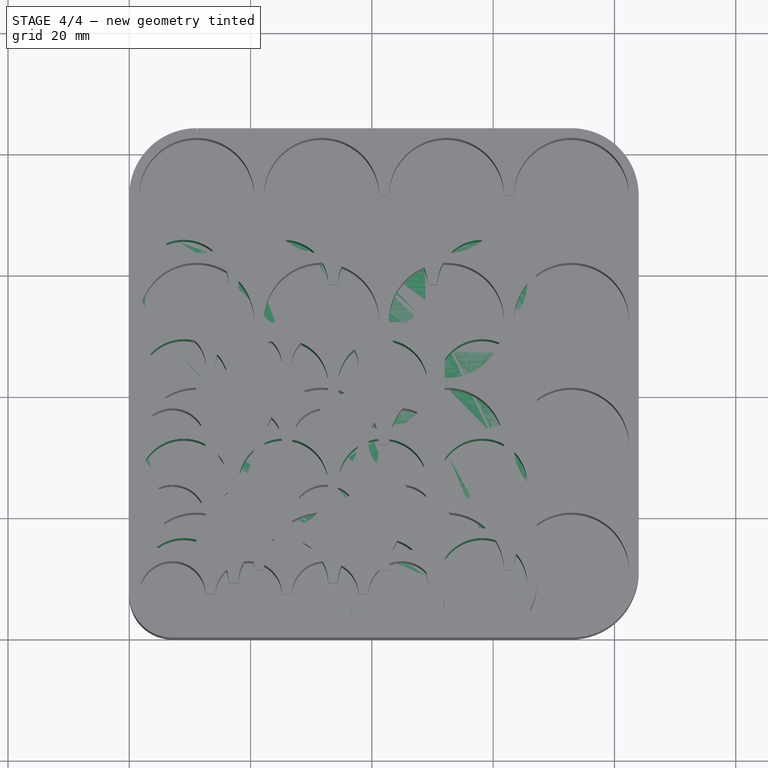
[diagram: stage 4 of 4 — top view after this stage's code; geometry added in this stage tinted green]
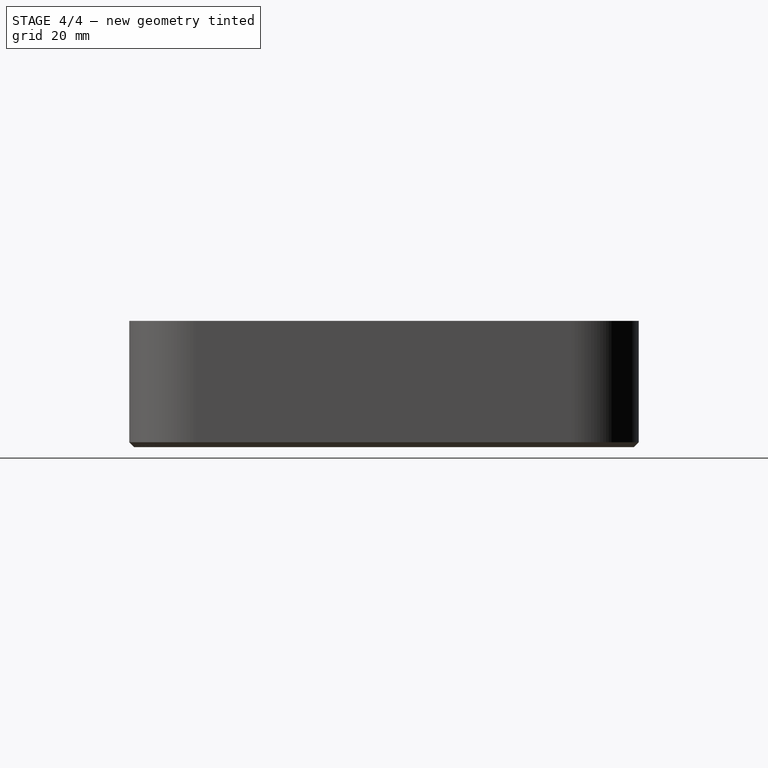
[diagram: stage 4 of 4 — right view after this stage's code; geometry added in this stage tinted green]
FEATURE [Sketcher::SketchObject] Sketch002
  ArcFitTolerance = 1e-06
  AttachmentSupport = -> [XY_Plane]
  ExternalGeometry = -> [Sketch]
  FullyConstrained = true
  MakeInternals = false
  MapMode = 5
  sketch-geometry (16):
    g0: Circle CenterX=9 CenterY=9 CenterZ=0 NormalX=0 NormalY=0 NormalZ=1 AngleXU=0 Radius=7.4
    g1: Circle CenterX=25.4 CenterY=9 CenterZ=0 NormalX=0 NormalY=0 NormalZ=1 AngleXU=0 Radius=7.4
    g2: Circle CenterX=41.8 CenterY=9 CenterZ=0 NormalX=0 NormalY=0 NormalZ=1 AngleXU=0 Radius=7.4
    g3: Circle CenterX=58.2 CenterY=9 CenterZ=0 NormalX=0 NormalY=0 NormalZ=1 AngleXU=0 Radius=7.4
    g4: Circle CenterX=9 CenterY=25.4 CenterZ=0 NormalX=0 NormalY=0 NormalZ=1 AngleXU=0 Radius=7.4
    g5: Circle CenterX=25.4 CenterY=25.4 CenterZ=0 NormalX=0 NormalY=0 NormalZ=1 AngleXU=0 Radius=7.4
    g6: Circle CenterX=41.8 CenterY=25.4 CenterZ=0 NormalX=0 NormalY=0 NormalZ=1 AngleXU=0 Radius=7.4
    g7: Circle CenterX=58.2 CenterY=25.4 CenterZ=0 NormalX=0 NormalY=0 NormalZ=1 AngleXU=0 Radius=7.4
    g8: Circle CenterX=9 CenterY=41.8 CenterZ=0 NormalX=0 NormalY=0 NormalZ=1 AngleXU=0 Radius=7.4
    g9: Circle CenterX=25.4 CenterY=41.8 CenterZ=0 NormalX=0 NormalY=0 NormalZ=1 AngleXU=0 Radius=7.4
    g10: Circle CenterX=41.8 CenterY=41.8 CenterZ=0 NormalX=0 NormalY=0 NormalZ=1 AngleXU=0 Radius=7.4
    g11: Circle CenterX=58.2 CenterY=41.8 CenterZ=0 NormalX=0 NormalY=0 NormalZ=1 AngleXU=0 Radius=7.4
    g12: Circle CenterX=58.2 CenterY=58.2 CenterZ=0 NormalX=0 NormalY=0 NormalZ=1 AngleXU=0 Radius=7.4
    g13: Circle CenterX=41.8 CenterY=58.2 CenterZ=0 NormalX=0 NormalY=0 NormalZ=1 AngleXU=0 Radius=7.4
    g14: Circle CenterX=25.4 CenterY=58.2 CenterZ=0 NormalX=0 NormalY=0 NormalZ=1 AngleXU=0 Radius=7.4
    g15: Circle CenterX=9 CenterY=58.2 CenterZ=0 NormalX=0 NormalY=0 NormalZ=1 AngleXU=0 Radius=7.4
  constraints (32):
    c: Coincident(g0,g-18)
    c: Coincident(g1,g-17)
    c: Coincident(g2,g-16)
    c: Coincident(g3,g-15)
    c: Coincident(g7,g-8)
    c: Coincident(g6,g-14)
    c: Coincident(g5,g-13)
    c: Coincident(g4,g-12)
    c: Coincident(g8,g-11)
    c: Coincident(g9,g-10)
    c: Coincident(g10,g-9)
    c: Coincident(g11,g-7)
    c: Coincident(g12,g-6)
    c: Coincident(g13,g-5)
    c: Coincident(g14,g-4)
    c: Coincident(g15,g-3)
    c: Equal(g0,g-18)
    c: Equal(g1,g-17)
    c: Equal(g2,g-16)
    c: Equal(g3,g-15)
    c: Equal(g7,g-8)
    c: Equal(g6,g-14)
    c: Equal(g5,g-13)
    c: Equal(g4,g-12)
    c: Equal(g8,g-11)
    c: Equal(g9,g-10)
    c: Equal(g10,g-9)
    c: Equal(g11,g-7)
    c: Equal(g12,g-6)
    c: Equal(g13,g-5)
    c: Equal(g14,g-4)
    c: Equal(g15,g-3)
FEATURE [Sketcher::SketchObject] Sketch003
  ArcFitTolerance = 1e-06
  AttachmentSupport = -> [XY_Plane]
  ExternalGeometry = -> [Sketch]
  FullyConstrained = true
  MakeInternals = false
  MapMode = 5
  expr: Constraints[83] = <<Spreadsheet>>.Gap
  sketch-geometry (28):
    g0: LineSegment StartX=8.98 StartY=67.2 StartZ=0 EndX=8.98 EndY=16.4 EndZ=0
    g1: LineSegment StartX=8.98 StartY=16.4 StartZ=0 EndX=9.02 EndY=16.4 EndZ=0
    g2: LineSegment StartX=9.02 StartY=16.4 StartZ=0 EndX=9.02 EndY=67.2 EndZ=0
    g3: LineSegment StartX=9.02 StartY=67.2 StartZ=0 EndX=8.98 EndY=67.2 EndZ=0
    g4: LineSegment StartX=16.4 StartY=8.98 StartZ=0 EndX=16.4 EndY=9.02 EndZ=0
    g5: LineSegment StartX=16.4 StartY=9.02 StartZ=0 EndX=50.8 EndY=9.02 EndZ=0
    g6: LineSegment StartX=50.8 StartY=9.02 StartZ=0 EndX=50.8 EndY=8.98 EndZ=0
    g7: LineSegment StartX=50.8 StartY=8.98 StartZ=0 EndX=16.4 EndY=8.98 EndZ=0
    g8: LineSegment StartX=58.18 StartY=16.4 StartZ=0 EndX=58.22 EndY=16.4 EndZ=0
    g9: LineSegment StartX=58.22 StartY=16.4 StartZ=0 EndX=58.22 EndY=50.8 EndZ=0
    g10: LineSegment StartX=58.22 StartY=50.8 StartZ=0 EndX=58.18 EndY=50.8 EndZ=0
    g11: LineSegment StartX=58.18 StartY=50.8 StartZ=0 EndX=58.18 EndY=16.4 EndZ=0
    g12: LineSegment StartX=50.8 StartY=58.18 StartZ=0 EndX=32.8 EndY=58.18 EndZ=0
    g13: LineSegment StartX=32.8 StartY=58.18 StartZ=0 EndX=32.8 EndY=58.22 EndZ=0
    g14: LineSegment StartX=32.8 StartY=58.22 StartZ=0 EndX=50.8 EndY=58.22 EndZ=0
    g15: LineSegment StartX=50.8 StartY=58.22 StartZ=0 EndX=50.8 EndY=58.18 EndZ=0
    g16: LineSegment StartX=25.42 StartY=50.8 StartZ=0 EndX=25.42 EndY=32.8 EndZ=0
    g17: LineSegment StartX=25.42 StartY=32.8 StartZ=0 EndX=25.38 EndY=32.8 EndZ=0
    g18: LineSegment StartX=25.38 StartY=32.8 StartZ=0 EndX=25.38 EndY=50.8 EndZ=0
    g19: LineSegment StartX=25.38 StartY=50.8 StartZ=0 EndX=25.42 EndY=50.8 EndZ=0
    g20: LineSegment StartX=32.8 StartY=25.38 StartZ=0 EndX=32.8 EndY=25.42 EndZ=0
    g21: LineSegment StartX=32.8 StartY=25.42 StartZ=0 EndX=34.4 EndY=25.42 EndZ=0
    g22: LineSegment StartX=34.4 StartY=25.42 StartZ=0 EndX=34.4 EndY=25.38 EndZ=0
    g23: LineSegment StartX=34.4 StartY=25.38 StartZ=0 EndX=32.8 EndY=25.38 EndZ=0
    g24: LineSegment StartX=41.78 StartY=32.8 StartZ=0 EndX=41.82 EndY=32.8 EndZ=0
    g25: LineSegment StartX=41.82 StartY=32.8 StartZ=0 EndX=41.82 EndY=34.4 EndZ=0
    g26: LineSegment StartX=41.82 StartY=34.4 StartZ=0 EndX=41.78 EndY=34.4 EndZ=0
    g27: LineSegment StartX=41.78 StartY=34.4 StartZ=0 EndX=41.78 EndY=32.8 EndZ=0
  constraints (84):
    c: PointOnObject(g0,g-20)
    c: Vertical(g0)
    c: Coincident(g1,g0)
    c: Horizontal(g1)
    c: Coincident(g2,g1)
    c: PointOnObject(g2,g-20)
    c: Vertical(g2)
    c: Coincident(g3,g2)
    c: Coincident(g3,g0)
    c: PointOnObject(g0,g-18)
    c: PointOnObject(g1,g-18)
    c: Coincident(g4,g5)
    c: Coincident(g5,g6)
    c: Coincident(g6,g7)
    c: Coincident(g7,g4)
    c: Vertical(g4)
    c: Vertical(g6)
    c: Horizontal(g5)
    c: Horizontal(g7)
    c: PointOnObject(g4,g-18)
    c: PointOnObject(g5,g-15)
    c: PointOnObject(g4,g-18)
    c: Coincident(g8,g9)
    c: Coincident(g9,g10)
    c: Coincident(g10,g11)
    c: Coincident(g11,g8)
    c: Horizontal(g8)
    c: Horizontal(g10)
    c: Vertical(g9)
    c: Vertical(g11)
    c: PointOnObject(g8,g-15)
    c: PointOnObject(g9,g-6)
    c: PointOnObject(g8,g-15)
    c: Coincident(g12,g13)
    c: Coincident(g13,g14)
    c: Coincident(g14,g15)
    c: Coincident(g15,g12)
    c: Horizontal(g12)
    c: Horizontal(g14)
    c: Vertical(g13)
    c: Vertical(g15)
    c: PointOnObject(g12,g-6)
    c: PointOnObject(g13,g-4)
    c: PointOnObject(g14,g-6)
    c: Coincident(g16,g17)
    c: Coincident(g17,g18)
    c: Coincident(g18,g19)
    c: Coincident(g19,g16)
    c: Vertical(g16)
    c: Vertical(g18)
    c: Horizontal(g17)
    c: Horizontal(g19)
    c: PointOnObject(g16,g-4)
    c: PointOnObject(g17,g-12)
    c: PointOnObject(g18,g-4)
    c: Coincident(g20,g21)
    c: Coincident(g21,g22)
    c: Coincident(g22,g23)
    c: Coincident(g23,g20)
    c: Vertical(g20)
    c: Vertical(g22)
    c: Horizontal(g21)
    c: Horizontal(g23)
    c: PointOnObject(g20,g-12)
    c: PointOnObject(g21,g-13)
    c: PointOnObject(g20,g-12)
    c: Coincident(g24,g25)
    c: Coincident(g25,g26)
    c: Coincident(g26,g27)
    c: Coincident(g27,g24)
    c: Horizontal(g24)
    c: Horizontal(g26)
    c: Vertical(g25)
    c: Vertical(g27)
    c: PointOnObject(g24,g-13)
    c: PointOnObject(g25,g-8)
    c: PointOnObject(g24,g-13)
    c: Equal(g3,g4)
    c: Equal(g4,g8)
    c: Equal(g8,g15)
    c: Equal(g15,g19)
    c: Equal(g19,g20)
    c: Equal(g20,g24)
    c: DistanceX(g3,g3) = 0.04
FEATURE [PartDesign::Chamfer] Chamfer
  Angle = 45
  Base = -> Pad [Edge6]
  BaseFeature = -> Pad
  ChamferType = 0
  FlipDirection = false
  Refine = true
  Size = 0.8
  Size2 = 1
  SupportTransform = false
  Suppressed = false
  UseAllEdges = false
  expr: Size = <<Pad>>.Length2
FEATURE [PartDesign::Pocket] Pocket
  BaseFeature = -> Chamfer
  Direction = (0,0,-1)
  Length = 5
  Length2 = 5
  Profile = -> Sketch002
  ReferenceAxis = -> Sketch002 [N_Axis]
  Refine = true
  Reversed = true
  Suppressed = false
  Type = 1
FEATURE [PartDesign::Pocket] Pocket001
  BaseFeature = -> Pocket
  Direction = (0,0,-1)
  Length = 5
  Length2 = 5
  Profile = -> Sketch003
  ReferenceAxis = -> Sketch003 [N_Axis]
  Refine = true
  Reversed = true
  Suppressed = false
  Type = 1
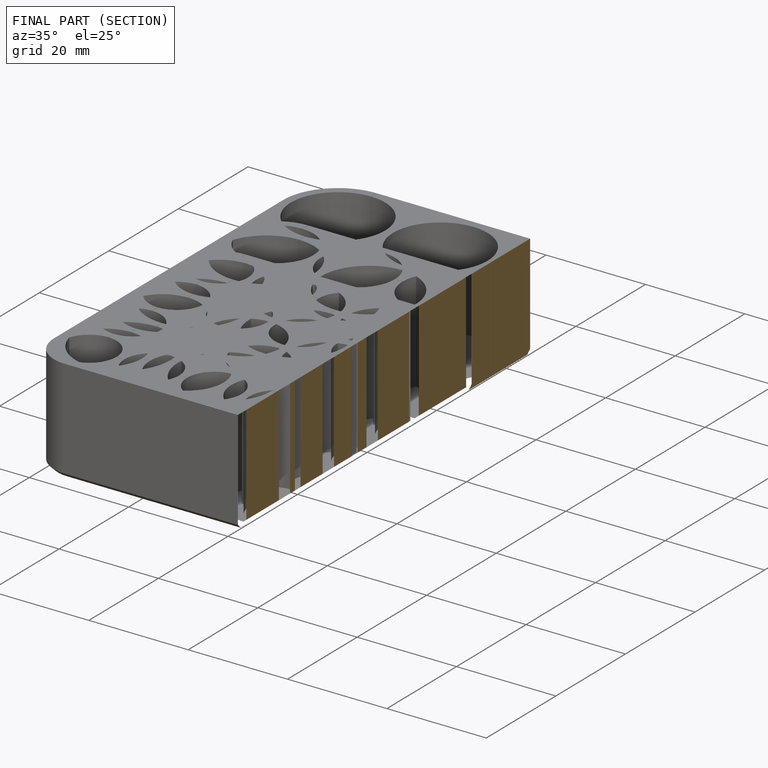
[diagram: finished part — half-section view (interior)]
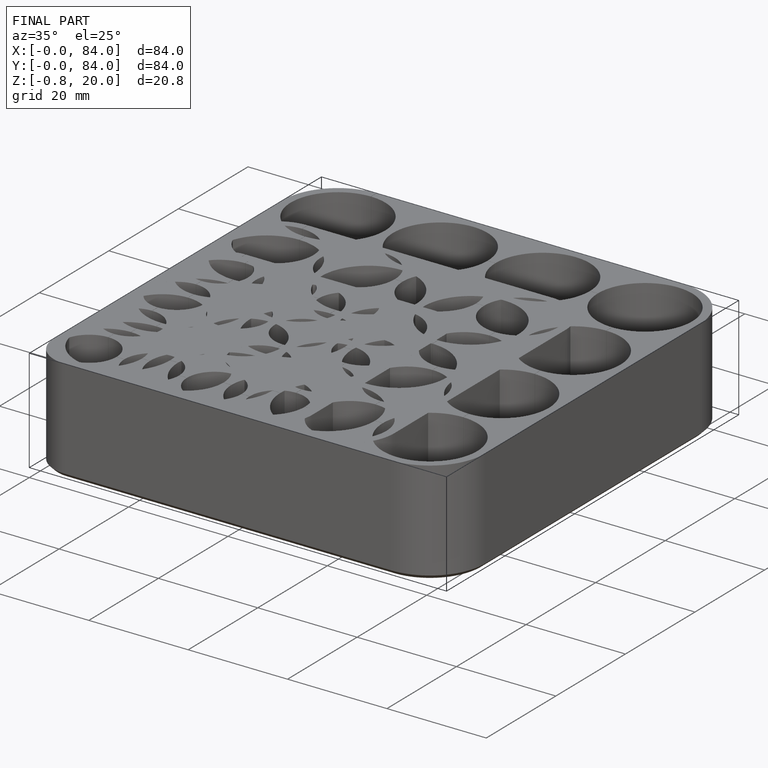
[diagram: finished part — iso view with bounding-box wireframe]
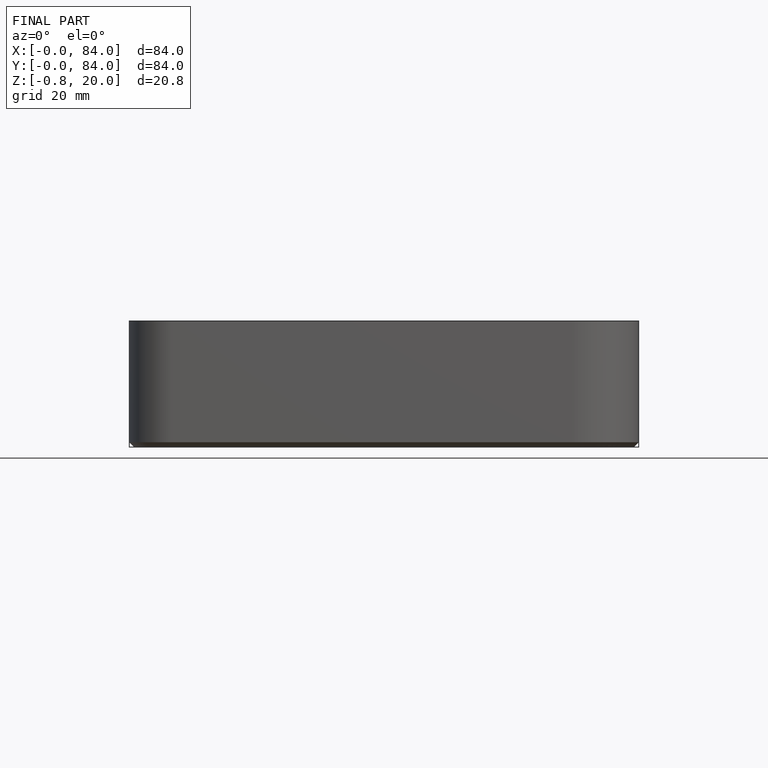
[diagram: finished part — front view with bounding-box wireframe]
